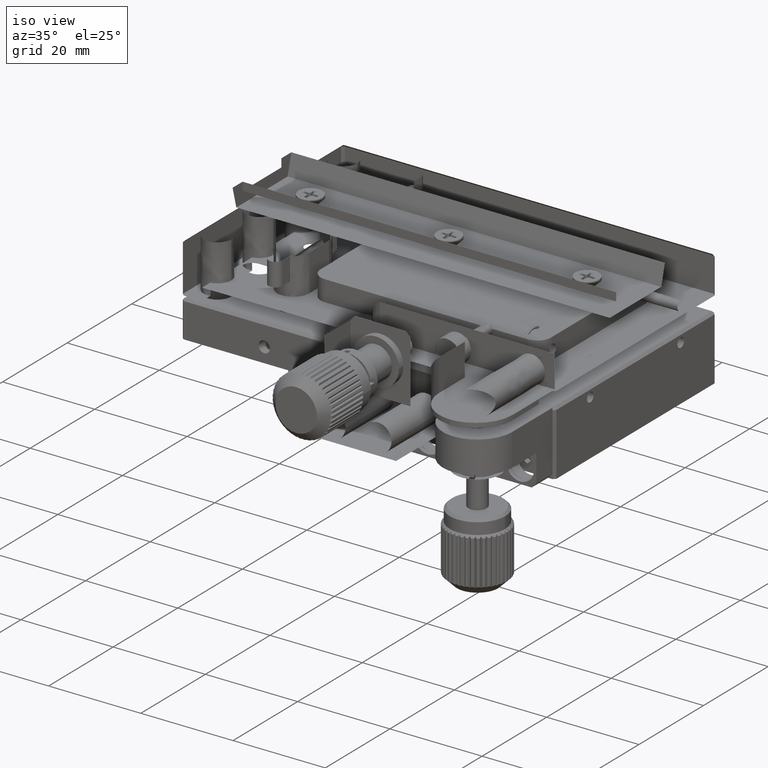
[diagram: clean part render]
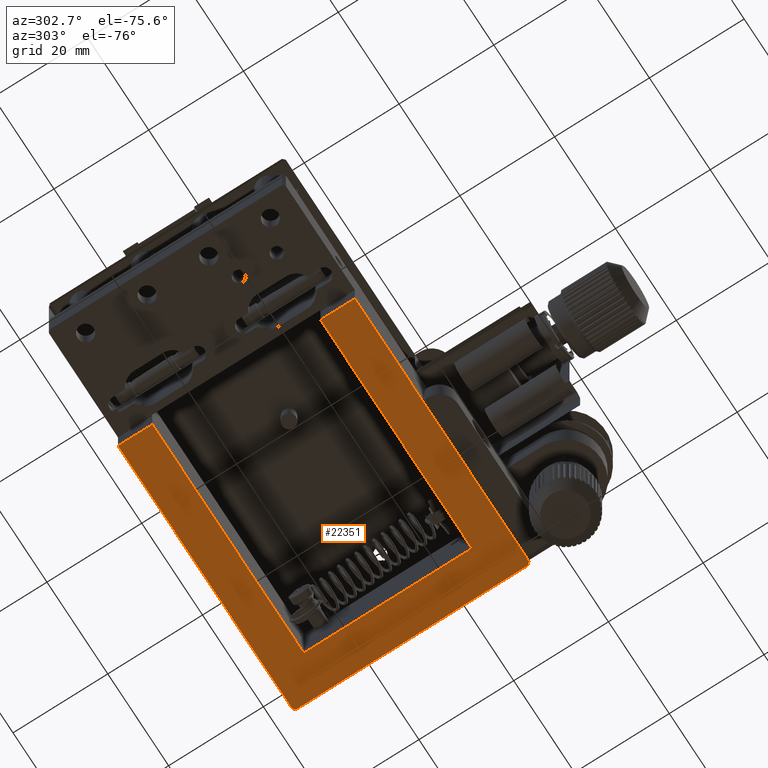
[diagram: tour spotlight — one face highlighted and labeled with its STEP entity id]
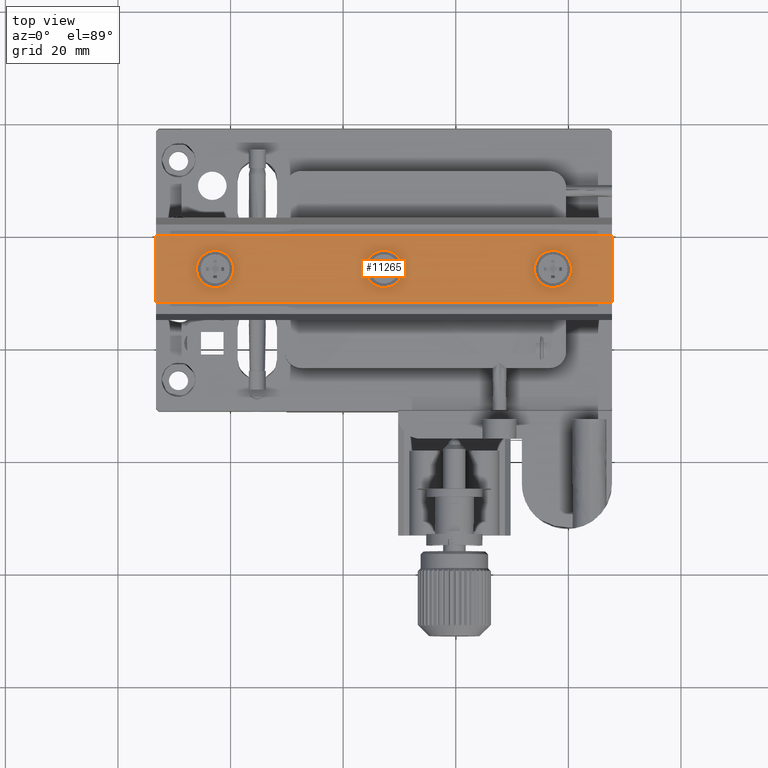
[diagram: tour spotlight — one face highlighted and labeled with its STEP entity id]
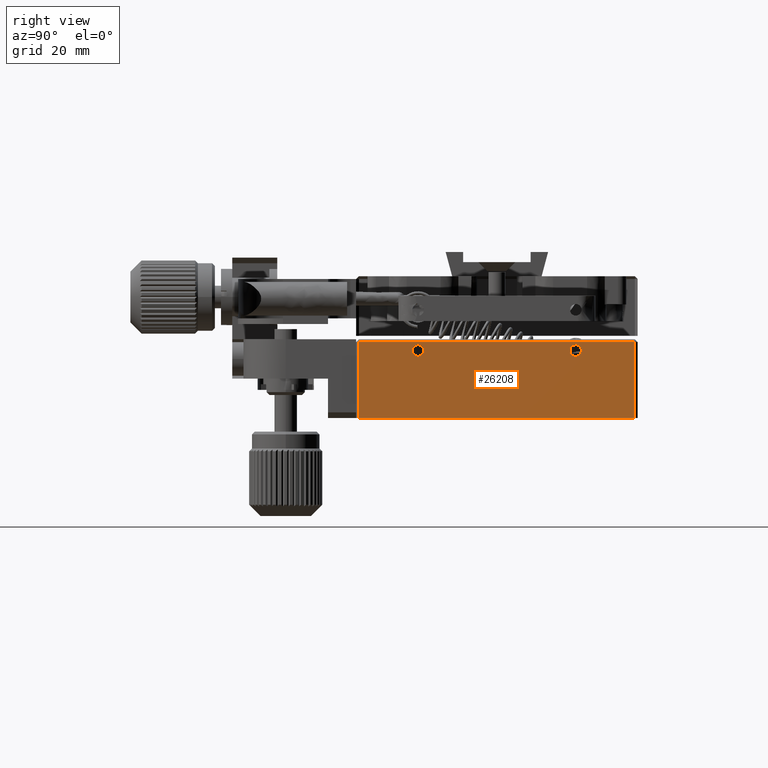
[diagram: tour spotlight — one face highlighted and labeled with its STEP entity id]
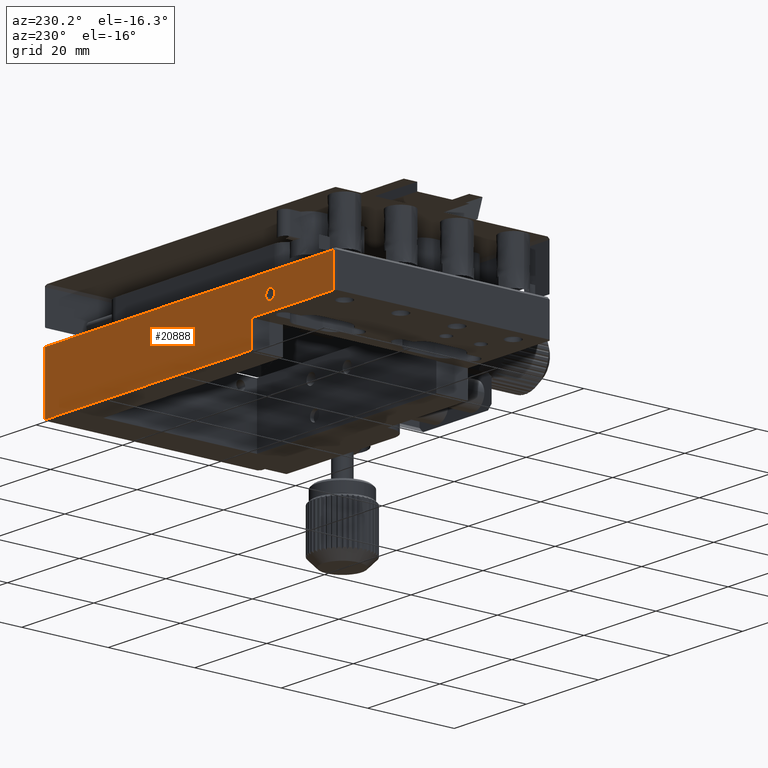
[diagram: tour spotlight — one face highlighted and labeled with its STEP entity id]
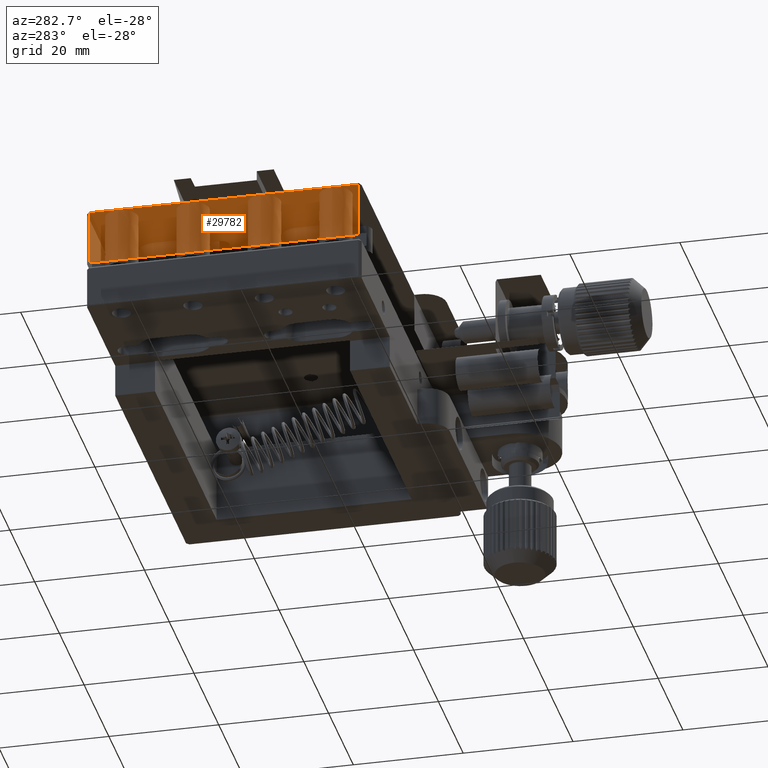
[diagram: tour spotlight — one face highlighted and labeled with its STEP entity id]
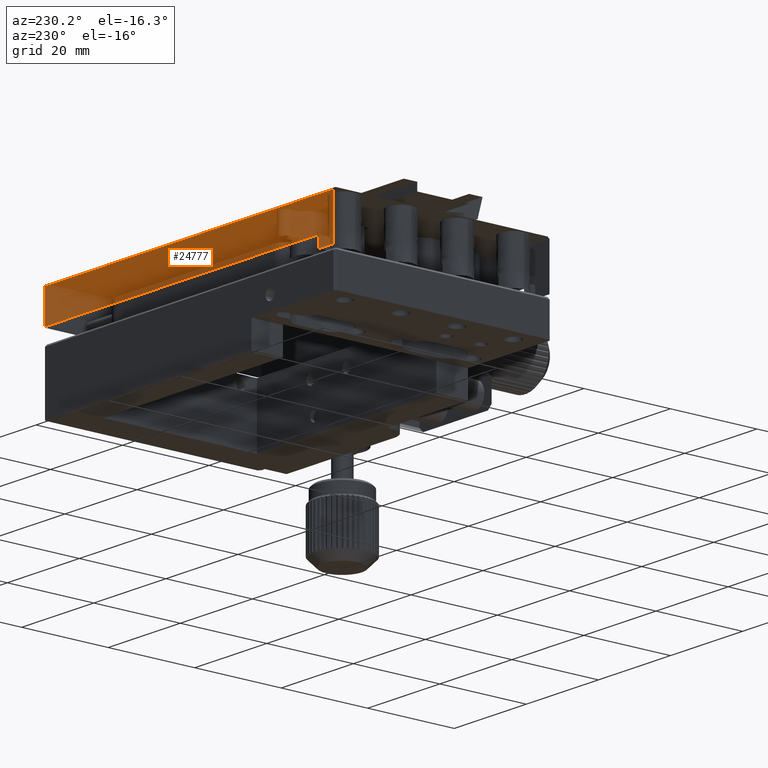
[diagram: tour spotlight — one face highlighted and labeled with its STEP entity id]
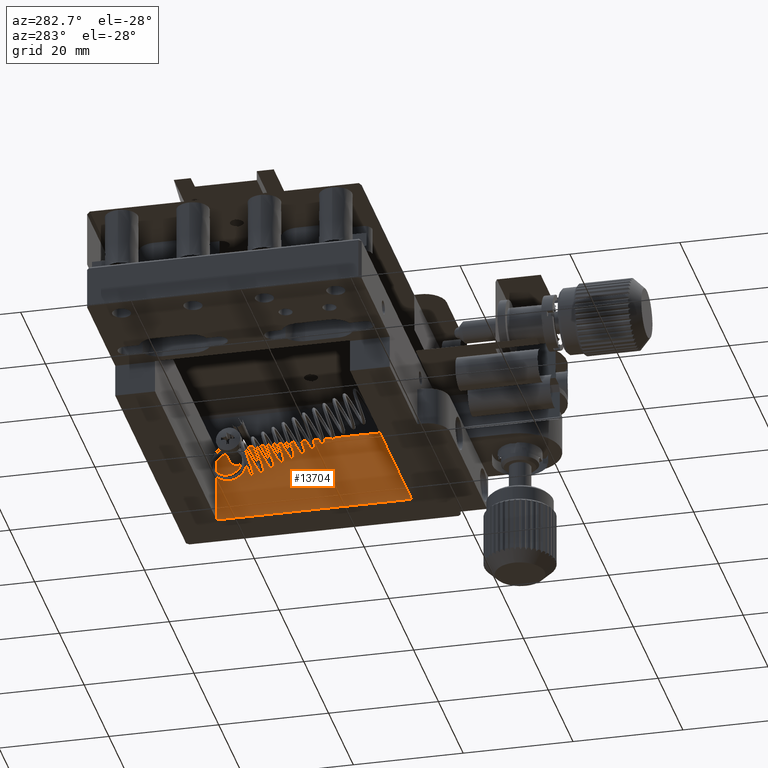
[diagram: tour spotlight — one face highlighted and labeled with its STEP entity id]
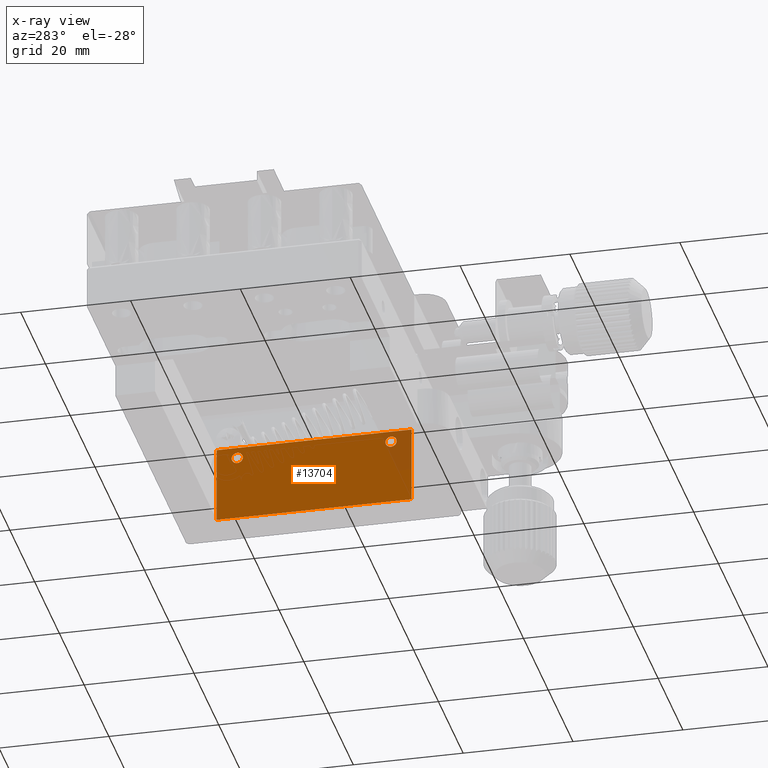
[diagram: x-ray of the same camera — body ghosted, this tour face saturated]
A machine part: a face-by-face anatomy tour. The part has 739 B-rep faces; the first image is the clean iso view, then the 7 largest visible faces are spotlighted one at a time (largest first), each with its STEP entity span.

Face 1 — auxiliary view, entity #22351. In plain terms, the highlighted face is a freeform B-spline surface patch.
Definition (entity closure, byte-faithful):
#93 = VERTEX_POINT ( 'NONE', #20867 ) ;
#1042 = CARTESIAN_POINT ( 'NONE',  ( 47.25667729595620159, 18.55918000742349960, -8.195989931716210819 ) ) ;
#1601 = EDGE_CURVE ( 'NONE', #3650, #3713, #22501, .T. ) ;
#1650 = B_SPLINE_CURVE_WITH_KNOTS ( 'NONE', 1,
 ( #6913, #29962 ),
 .UNSPECIFIED., .F., .F.,
 ( 2, 2 ),
 ( 0.000000000000000000, 0.01745200698080293100 ),
 .UNSPECIFIED. ) ;
#1994 = B_SPLINE_CURVE_WITH_KNOTS ( 'NONE', 1,
 ( #7363, #15677 ),
 .UNSPECIFIED., .F., .F.,
 ( 2, 2 ),
 ( 0.6108202443280980054, 1.000000000000000000 ),
 .UNSPECIFIED. ) ;
#2064 = CARTESIAN_POINT ( 'NONE',  ( -10.04332270404390037, 18.55918000742349960, -8.195989931716210819 ) ) ;
#2088 = VERTEX_POINT ( 'NONE', #8304 ) ;
#2092 = EDGE_CURVE ( 'NONE', #93, #11170, #8403, .T. ) ;
#2333 = ORIENTED_EDGE ( 'NONE', *, *, #8336, .T. ) ;
#2857 = CARTESIAN_POINT ( 'NONE',  ( -10.04332270404390037, 18.55918000742349960, -8.195989931716210819 ) ) ;
#2931 = CARTESIAN_POINT ( 'NONE',  ( -10.04332270404390037, 11.30918000742349960, -8.195989931716210819 ) ) ;
#3468 = EDGE_CURVE ( 'NONE', #3713, #93, #22815, .T. ) ;
#3650 = VERTEX_POINT ( 'NONE', #20637 ) ;
#3713 = VERTEX_POINT ( 'NONE', #12337 ) ;
#4165 = EDGE_CURVE ( 'NONE', #6613, #6692, #1650, .T. ) ;
#4530 = ORIENTED_EDGE ( 'NONE', *, *, #2092, .F. ) ;
#4608 = CARTESIAN_POINT ( 'NONE',  ( -10.04332270404390037, -24.19081999257650040, -8.195989931716210819 ) ) ;
#4882 = FACE_OUTER_BOUND ( 'NONE', #16251, .T. ) ;
#4978 = CARTESIAN_POINT ( 'NONE',  ( 47.75667729595609501, 18.05918000742349960, -8.195989931716210819 ) ) ;
#5523 = VERTEX_POINT ( 'NONE', #4978 ) ;
#5620 = CARTESIAN_POINT ( 'NONE',  ( -10.04332270404390037, -31.44081999257650040, -8.195989931716210819 ) ) ;
#6067 = CARTESIAN_POINT ( 'NONE',  ( -10.04332270404390037, 18.55918000742349960, -8.195989931716210819 ) ) ;
#6459 = B_SPLINE_CURVE_WITH_KNOTS ( 'NONE', 1,
 ( #35245, #26394 ),
 .UNSPECIFIED., .F., .F.,
 ( 2, 2 ),
 ( 0.000000000000000000, 1.000000000000000000 ),
 .UNSPECIFIED. ) ;
#6613 = VERTEX_POINT ( 'NONE', #34014 ) ;
#6692 = VERTEX_POINT ( 'NONE', #22778 ) ;
#6913 = CARTESIAN_POINT ( 'NONE',  ( 47.25667729595609501, -31.44081999257650040, -8.195989931716210819 ) ) ;
#7363 = CARTESIAN_POINT ( 'NONE',  ( 12.25667729595610034, -31.44081999257650040, -8.195989931716210819 ) ) ;
#8304 = CARTESIAN_POINT ( 'NONE',  ( 39.75667729595609501, -24.19081999257650040, -8.195989931716210819 ) ) ;
#8336 = EDGE_CURVE ( 'NONE', #22569, #30436, #1994, .T. ) ;
#8403 = B_SPLINE_CURVE_WITH_KNOTS ( 'NONE', 1,
 ( #2931, #34090 ),
 .UNSPECIFIED., .F., .F.,
 ( 2, 2 ),
 ( 0.000000000000000000, 1.000000000000000000 ),
 .UNSPECIFIED. ) ;
#9719 = CARTESIAN_POINT ( 'NONE',  ( 39.75667729595609501, -24.19081999257650040, -8.195989931716210819 ) ) ;
#10183 = CARTESIAN_POINT ( 'NONE',  ( -10.04332270404390037, -31.44081999257650040, -8.195989931716210819 ) ) ;
#10427 = EDGE_CURVE ( 'NONE', #22569, #6692, #31748, .T. ) ;
#10583 = B_SPLINE_CURVE_WITH_KNOTS ( 'NONE', 1,
 ( #32923, #36248 ),
 .UNSPECIFIED., .F., .F.,
 ( 2, 2 ),
 ( 0.000000000000000000, 1.000000000000000000 ),
 .UNSPECIFIED. ) ;
#10852 = B_SPLINE_CURVE_WITH_KNOTS ( 'NONE', 1,
 ( #31926, #10183 ),
 .UNSPECIFIED., .F., .F.,
 ( 2, 2 ),
 ( 0.000000000000000000, 1.000000000000000000 ),
 .UNSPECIFIED. ) ;
#11170 = VERTEX_POINT ( 'NONE', #12557 ) ;
#12337 = CARTESIAN_POINT ( 'NONE',  ( -10.04332270404390037, 18.55918000742349960, -8.195989931716210819 ) ) ;
#12557 = CARTESIAN_POINT ( 'NONE',  ( 39.75667729595609501, 11.30918000742349960, -8.195989931716210819 ) ) ;
#13004 = CARTESIAN_POINT ( 'NONE',  ( 12.25667729595610034, -31.44081999257650040, -8.195989931716210819 ) ) ;
#13497 = CARTESIAN_POINT ( 'NONE',  ( 12.25667729595610034, -31.44081999257650040, -8.195989931716210819 ) ) ;
#13662 = CARTESIAN_POINT ( 'NONE',  ( -10.04332270404390037, -31.44081999257650040, -8.195989931716210819 ) ) ;
#13932 = ORIENTED_EDGE ( 'NONE', *, *, #34666, .F. ) ;
#14134 = ORIENTED_EDGE ( 'NONE', *, *, #10427, .F. ) ;
#15218 = ORIENTED_EDGE ( 'NONE', *, *, #1601, .F. ) ;
#15275 = B_SPLINE_SURFACE_WITH_KNOTS ( 'NONE', 1, 1, ( 
 ( #32368, #2857 ),
 ( #36237, #5620 ) ),
 .UNSPECIFIED., .F., .F., .F.,
 ( 2, 2 ),
 ( 2, 2 ),
 ( 0.000000000000000000, 1.000000000000000000 ),
 ( 0.000000000000000000, 1.000000000000000000 ),
 .UNSPECIFIED. ) ;
#15677 = CARTESIAN_POINT ( 'NONE',  ( -10.04332270404390037, -31.44081999257650040, -8.195989931716210819 ) ) ;
#15770 = B_SPLINE_CURVE_WITH_KNOTS ( 'NONE', 1,
 ( #9719, #21342 ),
 .UNSPECIFIED., .F., .F.,
 ( 2, 2 ),
 ( 0.000000000000000000, 1.000000000000000000 ),
 .UNSPECIFIED. ) ;
#16242 = B_SPLINE_CURVE_WITH_KNOTS ( 'NONE', 1,
 ( #34412, #1042 ),
 .UNSPECIFIED., .F., .F.,
 ( 2, 2 ),
 ( 0.000000000000000000, 1.000000000000000000 ),
 .UNSPECIFIED. ) ;
#16251 = EDGE_LOOP ( 'NONE', ( #16888, #25829, #22130, #14134, #2333, #13932, #22851, #34195, #4530, #19064, #15218, #21314 ) ) ;
#16612 = CARTESIAN_POINT ( 'NONE',  ( -10.04332270404390037, 11.30918000742349960, -8.195989931716210819 ) ) ;
#16888 = ORIENTED_EDGE ( 'NONE', *, *, #28903, .F. ) ;
#18102 = VERTEX_POINT ( 'NONE', #19795 ) ;
#19064 = ORIENTED_EDGE ( 'NONE', *, *, #3468, .F. ) ;
#19162 = VERTEX_POINT ( 'NONE', #4608 ) ;
#19795 = CARTESIAN_POINT ( 'NONE',  ( 47.75667729595609501, -30.94081999257649684, -8.195989931716210819 ) ) ;
#20637 = CARTESIAN_POINT ( 'NONE',  ( 47.25667729595620159, 18.55918000742349960, -8.195989931716210819 ) ) ;
#20867 = CARTESIAN_POINT ( 'NONE',  ( -10.04332270404390037, 11.30918000742349960, -8.195989931716210819 ) ) ;
#21314 = ORIENTED_EDGE ( 'NONE', *, *, #35968, .F. ) ;
#21342 = CARTESIAN_POINT ( 'NONE',  ( -10.04332270404390037, -24.19081999257650040, -8.195989931716210819 ) ) ;
#22130 = ORIENTED_EDGE ( 'NONE', *, *, #4165, .T. ) ;
#22351 = ADVANCED_FACE ( 'NONE', ( #4882 ), #15275, .T. ) ;
#22501 = B_SPLINE_CURVE_WITH_KNOTS ( 'NONE', 1,
 ( #27335, #2064 ),
 .UNSPECIFIED., .F., .F.,
 ( 2, 2 ),
 ( 0.000000000000000000, 1.000000000000000000 ),
 .UNSPECIFIED. ) ;
#22569 = VERTEX_POINT ( 'NONE', #13497 ) ;
#22778 = CARTESIAN_POINT ( 'NONE',  ( 46.25667729595609501, -31.44081999257650040, -8.195989931716210819 ) ) ;
#22815 = B_SPLINE_CURVE_WITH_KNOTS ( 'NONE', 1,
 ( #6067, #16612 ),
 .UNSPECIFIED., .F., .F.,
 ( 2, 2 ),
 ( 0.000000000000000000, 1.000000000000000000 ),
 .UNSPECIFIED. ) ;
#22851 = ORIENTED_EDGE ( 'NONE', *, *, #33941, .F. ) ;
#23578 = EDGE_CURVE ( 'NONE', #6613, #18102, #34987, .T. ) ;
#23600 = CARTESIAN_POINT ( 'NONE',  ( 47.25667729595609501, -31.44081999257650040, -8.195989931716210819 ) ) ;
#25829 = ORIENTED_EDGE ( 'NONE', *, *, #23578, .F. ) ;
#26394 = CARTESIAN_POINT ( 'NONE',  ( 47.75667729595609501, 18.05918000742349960, -8.195989931716210819 ) ) ;
#27335 = CARTESIAN_POINT ( 'NONE',  ( 47.25667729595620159, 18.55918000742349960, -8.195989931716210819 ) ) ;
#28903 = EDGE_CURVE ( 'NONE', #18102, #5523, #6459, .T. ) ;
#29962 = CARTESIAN_POINT ( 'NONE',  ( 46.25667729595609501, -31.44081999257650040, -8.195989931716210819 ) ) ;
#30436 = VERTEX_POINT ( 'NONE', #13662 ) ;
#31748 = B_SPLINE_CURVE_WITH_KNOTS ( 'NONE', 1,
 ( #13004, #32161 ),
 .UNSPECIFIED., .F., .F.,
 ( 2, 2 ),
 ( -0.9825479930191969302, -0.3891797556719019946 ),
 .UNSPECIFIED. ) ;
#31926 = CARTESIAN_POINT ( 'NONE',  ( -10.04332270404390037, -24.19081999257650040, -8.195989931716210819 ) ) ;
#32161 = CARTESIAN_POINT ( 'NONE',  ( 46.25667729595609501, -31.44081999257650040, -8.195989931716210819 ) ) ;
#32368 = CARTESIAN_POINT ( 'NONE',  ( 47.75667729595609501, 18.55918000742349960, -8.195989931716210819 ) ) ;
#32915 = EDGE_CURVE ( 'NONE', #11170, #2088, #10583, .T. ) ;
#32923 = CARTESIAN_POINT ( 'NONE',  ( 39.75667729595609501, 11.30918000742349960, -8.195989931716210819 ) ) ;
#33941 = EDGE_CURVE ( 'NONE', #2088, #19162, #15770, .T. ) ;
#34014 = CARTESIAN_POINT ( 'NONE',  ( 47.25667729595609501, -31.44081999257650040, -8.195989931716210819 ) ) ;
#34090 = CARTESIAN_POINT ( 'NONE',  ( 39.75667729595609501, 11.30918000742349960, -8.195989931716210819 ) ) ;
#34195 = ORIENTED_EDGE ( 'NONE', *, *, #32915, .F. ) ;
#34412 = CARTESIAN_POINT ( 'NONE',  ( 47.75667729595609501, 18.05918000742349960, -8.195989931716210819 ) ) ;
#34666 = EDGE_CURVE ( 'NONE', #19162, #30436, #10852, .T. ) ;
#34987 = B_SPLINE_CURVE_WITH_KNOTS ( 'NONE', 1,
 ( #23600, #35394 ),
 .UNSPECIFIED., .F., .F.,
 ( 2, 2 ),
 ( 0.000000000000000000, 1.000000000000000000 ),
 .UNSPECIFIED. ) ;
#35245 = CARTESIAN_POINT ( 'NONE',  ( 47.75667729595609501, -30.94081999257649684, -8.195989931716210819 ) ) ;
#35394 = CARTESIAN_POINT ( 'NONE',  ( 47.75667729595609501, -30.94081999257649684, -8.195989931716210819 ) ) ;
#35968 = EDGE_CURVE ( 'NONE', #5523, #3650, #16242, .T. ) ;
#36237 = CARTESIAN_POINT ( 'NONE',  ( 47.75667729595609501, -31.44081999257650040, -8.195989931716210819 ) ) ;
#36248 = CARTESIAN_POINT ( 'NONE',  ( 39.75667729595609501, -24.19081999257650040, -8.195989931716210819 ) ) ;

Face 2 — top view, entity #11265. In plain terms, the highlighted face is a freeform B-spline surface patch.
Definition (entity closure, byte-faithful):
#237 = CARTESIAN_POINT ( 'NONE',  ( 40.13801472475114451, -8.102082515160493159, 19.50396032735410046 ) ) ;
#276 = EDGE_CURVE ( 'NONE', #13851, #16304, #9013, .T. ) ;
#423 = CARTESIAN_POINT ( 'NONE',  ( 39.28071353165547919, -9.077807314903640901, 19.50396032735410046 ) ) ;
#575 = CARTESIAN_POINT ( 'NONE',  ( 9.280713531716829223, -9.077807314829129837, 19.50396032735410401 ) ) ;
#600 = EDGE_CURVE ( 'NONE', #17977, #942, #32079, .T. ) ;
#683 = CARTESIAN_POINT ( 'NONE',  ( -21.07620436756257476, -3.553604111212718131, 19.50396032735410401 ) ) ;
#719 = CARTESIAN_POINT ( 'NONE',  ( -33.24332270404389789, -12.43494817087820081, 19.50396032735410046 ) ) ;
#861 = CARTESIAN_POINT ( 'NONE',  ( -21.88473038697225803, -3.218687316105844687, 19.50396032735410756 ) ) ;
#931 = CARTESIAN_POINT ( 'NONE',  ( 9.899545816040872026, -8.458993782772630254, 19.50396032735409335 ) ) ;
#942 = VERTEX_POINT ( 'NONE', #24615 ) ;
#1004 = CARTESIAN_POINT ( 'NONE',  ( -25.62467901415088889, -8.102071581708331749, 19.50396032735410401 ) ) ;
#1778 = CARTESIAN_POINT ( 'NONE',  ( 34.37533986716096024, -4.767813826598882976, 19.50396032735410756 ) ) ;
#1896 = CARTESIAN_POINT ( 'NONE',  ( 3.956677295946070316, -6.434948170878150187, 19.50396032736464846 ) ) ;
#2026 = CARTESIAN_POINT ( 'NONE',  ( 47.75667729595609501, -12.43494817087820081, 19.50396032735410046 ) ) ;
#2216 = CARTESIAN_POINT ( 'NONE',  ( 47.75667729595609501, -0.4349481708781530176, 19.50396032735410046 ) ) ;
#2394 = FACE_BOUND ( 'NONE', #3937, .T. ) ;
#2454 = B_SPLINE_CURVE_WITH_KNOTS ( 'NONE', 3,
 ( #3510, #20844, #3681, #23243, #34481, #34840, #14792, #23417, #17900, #9225, #17726, #34663, #575, #931, #6623, #9410, #26362, #32067 ),
 .UNSPECIFIED., .F., .F.,
 ( 4, 2, 2, 2, 2, 2, 2, 2, 4 ),
 ( 0.000000000000000000, 0.1249999999999999722, 0.2499999999999999445, 0.3749999999999998890, 0.4999999999999998890, 0.6249999999999998890, 0.7499999999999997780, 0.8749999999999997780, 1.000000000000000000 ),
 .UNSPECIFIED. ) ;
#2696 = EDGE_CURVE ( 'NONE', #25484, #25932, #3489, .T. ) ;
#3310 = CARTESIAN_POINT ( 'NONE',  ( 47.75667729595609501, -12.43494817087820081, 19.50396032735410046 ) ) ;
#3441 = CARTESIAN_POINT ( 'NONE',  ( -20.10046356012767177, -4.410911935181971444, 19.50396032735409690 ) ) ;
#3489 = B_SPLINE_CURVE_WITH_KNOTS ( 'NONE', 1,
 ( #5654, #21909 ),
 .UNSPECIFIED., .F., .F.,
 ( 2, 2 ),
 ( 0.000000000000000000, 1.000000000000000000 ),
 .UNSPECIFIED. ) ;
#3510 = CARTESIAN_POINT ( 'NONE',  ( 3.956677295946070316, -6.434948170878150187, 19.50396032736464846 ) ) ;
#3681 = CARTESIAN_POINT ( 'NONE',  ( 4.040428691591085197, -7.293535413636827336, 19.50396032735410401 ) ) ;
#3744 = EDGE_LOOP ( 'NONE', ( #10136, #14054 ) ) ;
#3937 = EDGE_LOOP ( 'NONE', ( #13579, #13803 ) ) ;
#4157 = ORIENTED_EDGE ( 'NONE', *, *, #8285, .T. ) ;
#5029 = CARTESIAN_POINT ( 'NONE',  ( -19.86198527529655422, -8.102082515221889381, 19.50396032735409690 ) ) ;
#5213 = CARTESIAN_POINT ( 'NONE',  ( -19.44332270411804586, -6.872572704495168772, 19.50396032735410046 ) ) ;
#5401 = CARTESIAN_POINT ( 'NONE',  ( 34.04042869160588936, -7.293535413648649879, 19.50396032735410046 ) ) ;
#5654 = CARTESIAN_POINT ( 'NONE',  ( -33.24332270404389789, -12.43494817087820081, 19.50396032735410046 ) ) ;
#5945 = CARTESIAN_POINT ( 'NONE',  ( 40.47294478169950338, -7.293524480190471060, 19.50396032735410046 ) ) ;
#6130 = CARTESIAN_POINT ( 'NONE',  ( 33.95667729597560935, -6.872538052380443574, 19.50396032735410401 ) ) ;
#6623 = CARTESIAN_POINT ( 'NONE',  ( 10.13801472477697097, -8.102082515169389154, 19.50396032735410401 ) ) ;
#6697 = CARTESIAN_POINT ( 'NONE',  ( -22.30574882925192526, -9.734954800713387257, 19.50396032735410401 ) ) ;
#6829 = EDGE_CURVE ( 'NONE', #14081, #28853, #33549, .T. ) ;
#6977 = EDGE_CURVE ( 'NONE', #19061, #13031, #7813, .T. ) ;
#7275 = CARTESIAN_POINT ( 'NONE',  ( 10.55667729596619964, -6.434948170878150187, 19.50396032736464846 ) ) ;
#7436 = CARTESIAN_POINT ( 'NONE',  ( -20.10045418394548378, -8.458993782620241930, 19.50396032735410401 ) ) ;
#7558 = FACE_OUTER_BOUND ( 'NONE', #31440, .T. ) ;
#7813 = B_SPLINE_CURVE_WITH_KNOTS ( 'NONE', 3,
 ( #8907, #6130, #5401, #25326, #19811, #24968, #11142, #33434, #33606, #19623, #30661, #25507, #423, #14092, #237, #5945, #20167, #22370 ),
 .UNSPECIFIED., .F., .F.,
 ( 4, 2, 2, 2, 2, 2, 2, 2, 4 ),
 ( 0.000000000000000000, 0.1250000000000000000, 0.2500000000000000000, 0.3750000000000000000, 0.5000000000000000000, 0.6250000000000000000, 0.7500000000000000000, 0.8750000000000000000, 1.000000000000000000 ),
 .UNSPECIFIED. ) ;
#8047 = CARTESIAN_POINT ( 'NONE',  ( 37.69425117072655240, -3.134954800805425990, 19.50396032735409690 ) ) ;
#8285 = EDGE_CURVE ( 'NONE', #25932, #13851, #28002, .T. ) ;
#8287 = EDGE_CURVE ( 'NONE', #17977, #942, #2454, .T. ) ;
#8473 = CARTESIAN_POINT ( 'NONE',  ( 40.55667729593665172, -6.434948170878150187, 19.50396032736464846 ) ) ;
#8907 = CARTESIAN_POINT ( 'NONE',  ( 33.95667729597560225, -6.434948170878150187, 19.50396032736464846 ) ) ;
#9013 = B_SPLINE_CURVE_WITH_KNOTS ( 'NONE', 1,
 ( #9206, #3310 ),
 .UNSPECIFIED., .F., .F.,
 ( 2, 2 ),
 ( 0.000000000000000000, 1.000000000000000000 ),
 .UNSPECIFIED. ) ;
#9126 = CARTESIAN_POINT ( 'NONE',  ( -21.07619929324238228, -9.316304481016707939, 19.50396032735410401 ) ) ;
#9206 = CARTESIAN_POINT ( 'NONE',  ( 47.75667729595609501, -0.4349481708781535172, 19.50396032735410046 ) ) ;
#9225 = CARTESIAN_POINT ( 'NONE',  ( 7.694251170773342530, -9.734954800791726370, 19.50396032735409690 ) ) ;
#9410 = CARTESIAN_POINT ( 'NONE',  ( 10.47294478172832832, -7.293524480204204075, 19.50396032735410401 ) ) ;
#9486 = CARTESIAN_POINT ( 'NONE',  ( -23.18089657883595933, -9.734941540894718415, 19.50396032735410046 ) ) ;
#9521 = CARTESIAN_POINT ( 'NONE',  ( -25.95959018973423227, -5.576371861579800360, 19.50396032735410046 ) ) ;
#9807 = CARTESIAN_POINT ( 'NONE',  ( -19.44332270411790020, -6.434948170878160845, 19.50396032732674811 ) ) ;
#10136 = ORIENTED_EDGE ( 'NONE', *, *, #22224, .T. ) ;
#10341 = CARTESIAN_POINT ( 'NONE',  ( 33.95667729597560225, -6.434948170878150187, 19.50396032736464846 ) ) ;
#10642 = CARTESIAN_POINT ( 'NONE',  ( 39.89953644001268884, -4.410911935215557023, 19.50396032735410401 ) ) ;
#11005 = CARTESIAN_POINT ( 'NONE',  ( 35.23264106025239784, -3.792089026859760015, 19.50396032735409690 ) ) ;
#11142 = CARTESIAN_POINT ( 'NONE',  ( 35.58955895942547443, -9.316292230592631896, 19.50396032735410046 ) ) ;
#11265 = ADVANCED_FACE ( 'NONE', ( #27668, #2394, #22305, #7558 ), #34328, .T. ) ;
#11335 = EDGE_CURVE ( 'NONE', #16304, #25484, #32069, .T. ) ;
#11470 = CARTESIAN_POINT ( 'NONE',  ( -33.24332270404389789, -0.4349481708781535172, 19.50396032735410046 ) ) ;
#11941 = CARTESIAN_POINT ( 'NONE',  ( -25.38619122407933659, -4.410902559072961360, 19.50396032735410401 ) ) ;
#12195 = EDGE_CURVE ( 'NONE', #13031, #19061, #14512, .T. ) ;
#12225 = CARTESIAN_POINT ( 'NONE',  ( 33.95667729597548856, -5.997323637161804832, 19.50396032735410046 ) ) ;
#12263 = CARTESIAN_POINT ( 'NONE',  ( -24.41044104052160435, -9.316292230544965136, 19.50396032735410046 ) ) ;
#12644 = CARTESIAN_POINT ( 'NONE',  ( 3.956677295946063655, 0.1650518291419912353, 19.50396032736988161 ) ) ;
#12662 = CARTESIAN_POINT ( 'NONE',  ( -19.44332270411790020, -6.434948170878160845, 19.50396032732674811 ) ) ;
#12981 = EDGE_LOOP ( 'NONE', ( #17684, #34413 ) ) ;
#13031 = VERTEX_POINT ( 'NONE', #8473 ) ;
#13103 = CARTESIAN_POINT ( 'NONE',  ( -33.24332270404389789, -0.4349481708781530176, 19.50396032735410046 ) ) ;
#13135 = CARTESIAN_POINT ( 'NONE',  ( -26.04332270396984939, -6.434948170878160845, 19.50396032732674811 ) ) ;
#13579 = ORIENTED_EDGE ( 'NONE', *, *, #12195, .T. ) ;
#13776 = CARTESIAN_POINT ( 'NONE',  ( 35.58955388509440354, -3.553591860691916793, 19.50396032735410401 ) ) ;
#13803 = ORIENTED_EDGE ( 'NONE', *, *, #6977, .T. ) ;
#13851 = VERTEX_POINT ( 'NONE', #23635 ) ;
#14054 = ORIENTED_EDGE ( 'NONE', *, *, #6829, .T. ) ;
#14081 = VERTEX_POINT ( 'NONE', #13135 ) ;
#14092 = CARTESIAN_POINT ( 'NONE',  ( 39.89954581606037465, -8.458993782656280658, 19.50396032735410046 ) ) ;
#14401 = CARTESIAN_POINT ( 'NONE',  ( 47.75667729595609501, -12.43494817087820081, 19.50396032735410046 ) ) ;
#14512 = B_SPLINE_CURVE_WITH_KNOTS ( 'NONE', 3,
 ( #36247, #18765, #27229, #30167, #10642, #19127, #36068, #15804, #8047, #16539, #27778, #13776, #11005, #18577, #1778, #19671, #12225, #22597 ),
 .UNSPECIFIED., .F., .F.,
 ( 4, 2, 2, 2, 2, 2, 2, 2, 4 ),
 ( 0.000000000000000000, 0.1250000000000000278, 0.2500000000000000555, 0.3750000000000001110, 0.5000000000000001110, 0.6250000000000001110, 0.7500000000000002220, 0.8750000000000001110, 1.000000000000000000 ),
 .UNSPECIFIED. ) ;
#14725 = CARTESIAN_POINT ( 'NONE',  ( -22.30574882924845781, -3.134954800860033419, 19.50396032735410401 ) ) ;
#14792 = CARTESIAN_POINT ( 'NONE',  ( 5.589558959421821349, -9.316292230612624792, 19.50396032735409335 ) ) ;
#14825 = ORIENTED_EDGE ( 'NONE', *, *, #2696, .T. ) ;
#15054 = CARTESIAN_POINT ( 'NONE',  ( -26.04332270396976767, -6.872538052420714472, 19.50396032735410401 ) ) ;
#15753 = CARTESIAN_POINT ( 'NONE',  ( -20.71928646841598010, -9.077807314862495147, 19.50396032735409690 ) ) ;
#15804 = CARTESIAN_POINT ( 'NONE',  ( 38.11526961297658289, -3.218687316052617930, 19.50396032735409335 ) ) ;
#15942 = CARTESIAN_POINT ( 'NONE',  ( -19.44332270411790020, -6.434948170878160845, 19.50396032732674811 ) ) ;
#16304 = VERTEX_POINT ( 'NONE', #32345 ) ;
#16447 = B_SPLINE_CURVE_WITH_KNOTS ( 'NONE', 3,
 ( #12662, #29238, #29418, #34770, #3441, #25941, #683, #861, #14725, #26651, #23891, #31468, #35134, #11941, #34409, #9521, #31638, #20777 ),
 .UNSPECIFIED., .F., .F.,
 ( 4, 2, 2, 2, 2, 2, 2, 2, 4 ),
 ( 0.000000000000000000, 0.1249999999999998057, 0.2499999999999996114, 0.3749999999999996114, 0.4999999999999996669, 0.6249999999999996669, 0.7499999999999996669, 0.8749999999999998890, 1.000000000000000000 ),
 .UNSPECIFIED. ) ;
#16539 = CARTESIAN_POINT ( 'NONE',  ( 36.81910342118565183, -3.134941540989673481, 19.50396032735410046 ) ) ;
#17684 = ORIENTED_EDGE ( 'NONE', *, *, #600, .F. ) ;
#17726 = CARTESIAN_POINT ( 'NONE',  ( 8.115264538762955837, -9.651196775245297843, 19.50396032735410401 ) ) ;
#17900 = CARTESIAN_POINT ( 'NONE',  ( 6.819103421138856369, -9.734941540984715758, 19.50396032735410046 ) ) ;
#17977 = VERTEX_POINT ( 'NONE', #1896 ) ;
#17979 = CARTESIAN_POINT ( 'NONE',  ( -21.88473546129259972, -9.651196775177174558, 19.50396032735410401 ) ) ;
#18001 = CARTESIAN_POINT ( 'NONE',  ( 3.956677295946070316, -6.434948170878150187, 19.50396032736464846 ) ) ;
#18577 = CARTESIAN_POINT ( 'NONE',  ( 34.61380877585605020, -4.410902559092757080, 19.50396032735410756 ) ) ;
#18765 = CARTESIAN_POINT ( 'NONE',  ( 40.55667729593669435, -5.997358289319394409, 19.50396032735410401 ) ) ;
#19061 = VERTEX_POINT ( 'NONE', #10341 ) ;
#19127 = CARTESIAN_POINT ( 'NONE',  ( 39.28072290770330000, -3.792079650736961405, 19.50396032735410756 ) ) ;
#19623 = CARTESIAN_POINT ( 'NONE',  ( 37.69425117074549547, -9.734954800767985361, 19.50396032735410046 ) ) ;
#19671 = CARTESIAN_POINT ( 'NONE',  ( 34.04040981021259427, -5.576371861562668286, 19.50396032735410756 ) ) ;
#19811 = CARTESIAN_POINT ( 'NONE',  ( 34.61381815198323864, -8.458984406591936178, 19.50396032735409690 ) ) ;
#20167 = CARTESIAN_POINT ( 'NONE',  ( 40.55667729593659487, -6.872572704591370929, 19.50396032735410046 ) ) ;
#20777 = CARTESIAN_POINT ( 'NONE',  ( -26.04332270396984939, -6.434948170878160845, 19.50396032732674811 ) ) ;
#20844 = CARTESIAN_POINT ( 'NONE',  ( 3.956677295946028572, -6.872538052331017333, 19.50396032735410756 ) ) ;
#21221 = CARTESIAN_POINT ( 'NONE',  ( -33.24332270404389789, -12.43494817087820081, 19.50396032735410046 ) ) ;
#21909 = CARTESIAN_POINT ( 'NONE',  ( -33.24332270404389789, -0.4349481708781535172, 19.50396032735410046 ) ) ;
#22129 = CARTESIAN_POINT ( 'NONE',  ( -33.24332270404389789, -12.43494817087820081, 19.50396032735410046 ) ) ;
#22224 = EDGE_CURVE ( 'NONE', #28853, #14081, #16447, .T. ) ;
#22305 = FACE_BOUND ( 'NONE', #3744, .T. ) ;
#22370 = CARTESIAN_POINT ( 'NONE',  ( 40.55667729593665172, -6.434948170878150187, 19.50396032736464846 ) ) ;
#22597 = CARTESIAN_POINT ( 'NONE',  ( 33.95667729597560225, -6.434948170878150187, 19.50396032736464846 ) ) ;
#23243 = CARTESIAN_POINT ( 'NONE',  ( 4.375320985728013312, -8.102071581736767669, 19.50396032735410401 ) ) ;
#23417 = CARTESIAN_POINT ( 'NONE',  ( 6.398084978873169071, -9.651209025736774194, 19.50396032735410046 ) ) ;
#23494 = CARTESIAN_POINT ( 'NONE',  ( -23.60191502111905137, -9.651209025648915585, 19.50396032735409335 ) ) ;
#23635 = CARTESIAN_POINT ( 'NONE',  ( 47.75667729595609501, -0.4349481708781535172, 19.50396032735410046 ) ) ;
#23891 = CARTESIAN_POINT ( 'NONE',  ( -23.60190994679529553, -3.218699566579044546, 19.50396032735410046 ) ) ;
#24166 = ORIENTED_EDGE ( 'NONE', *, *, #11335, .T. ) ;
#24615 = CARTESIAN_POINT ( 'NONE',  ( 10.55667729596619964, -6.434948170878150187, 19.50396032736464846 ) ) ;
#24968 = CARTESIAN_POINT ( 'NONE',  ( 35.23263168412528046, -9.077816690967990709, 19.50396032735410046 ) ) ;
#25326 = CARTESIAN_POINT ( 'NONE',  ( 34.37532098576780726, -8.102071581702313452, 19.50396032735409690 ) ) ;
#25484 = VERTEX_POINT ( 'NONE', #21221 ) ;
#25507 = CARTESIAN_POINT ( 'NONE',  ( 38.92380070683858406, -9.316304481046344677, 19.50396032735410046 ) ) ;
#25932 = VERTEX_POINT ( 'NONE', #28917 ) ;
#25941 = CARTESIAN_POINT ( 'NONE',  ( -20.71927709223364289, -3.792079650847778538, 19.50396032735409335 ) ) ;
#26007 = CARTESIAN_POINT ( 'NONE',  ( 47.75667729595609501, -0.4349481708781535172, 19.50396032735410046 ) ) ;
#26362 = CARTESIAN_POINT ( 'NONE',  ( 10.55667729596617122, -6.872572704601331850, 19.50396032735410046 ) ) ;
#26651 = CARTESIAN_POINT ( 'NONE',  ( -23.18089657883942323, -3.134941541044279134, 19.50396032735410401 ) ) ;
#27202 = CARTESIAN_POINT ( 'NONE',  ( 10.55667729596619075, 0.1650518291419912353, 19.50396032736988161 ) ) ;
#27229 = CARTESIAN_POINT ( 'NONE',  ( 40.47292590036925475, -5.576360928202913847, 19.50396032735410401 ) ) ;
#27668 = FACE_BOUND ( 'NONE', #12981, .T. ) ;
#27733 = CARTESIAN_POINT ( 'NONE',  ( -19.52705521835374824, -7.293524480087310025, 19.50396032735410046 ) ) ;
#27778 = CARTESIAN_POINT ( 'NONE',  ( 36.39809005322304358, -3.218699566525737410, 19.50396032735410046 ) ) ;
#28002 = B_SPLINE_CURVE_WITH_KNOTS ( 'NONE', 1,
 ( #11470, #26007 ),
 .UNSPECIFIED., .F., .F.,
 ( 2, 2 ),
 ( 0.000000000000000000, 1.000000000000000000 ),
 .UNSPECIFIED. ) ;
#28853 = VERTEX_POINT ( 'NONE', #9807 ) ;
#28917 = CARTESIAN_POINT ( 'NONE',  ( -33.24332270404389789, -0.4349481708781535172, 19.50396032735410046 ) ) ;
#29033 = CARTESIAN_POINT ( 'NONE',  ( -26.04332270396984939, -6.434948170878160845, 19.50396032732674811 ) ) ;
#29238 = CARTESIAN_POINT ( 'NONE',  ( -19.44332270411788599, -5.997358289338531101, 19.50396032735410756 ) ) ;
#29379 = CARTESIAN_POINT ( 'NONE',  ( -25.95957130837443572, -7.293535413600871209, 19.50396032735410046 ) ) ;
#29418 = CARTESIAN_POINT ( 'NONE',  ( -19.52707409971315755, -5.576360928158344166, 19.50396032735410401 ) ) ;
#30167 = CARTESIAN_POINT ( 'NONE',  ( 40.13803360608158499, -4.767824759958638303, 19.50396032735410401 ) ) ;
#30661 = CARTESIAN_POINT ( 'NONE',  ( 38.11526453866824227, -9.651196775248410020, 19.50396032735410046 ) ) ;
#31440 = EDGE_LOOP ( 'NONE', ( #24166, #14825, #4157, #32321 ) ) ;
#31468 = CARTESIAN_POINT ( 'NONE',  ( -24.41044611484550941, -3.553591860739517383, 19.50396032735410401 ) ) ;
#31638 = CARTESIAN_POINT ( 'NONE',  ( -26.04332270396993465, -5.997323637171966482, 19.50396032735410046 ) ) ;
#31961 = CARTESIAN_POINT ( 'NONE',  ( -24.76736831585913023, -9.077816690906393760, 19.50396032735410756 ) ) ;
#32067 = CARTESIAN_POINT ( 'NONE',  ( 10.55667729596619964, -6.434948170878150187, 19.50396032736464846 ) ) ;
#32069 = B_SPLINE_CURVE_WITH_KNOTS ( 'NONE', 1,
 ( #14401, #719 ),
 .UNSPECIFIED., .F., .F.,
 ( 2, 2 ),
 ( 0.000000000000000000, 1.000000000000000000 ),
 .UNSPECIFIED. ) ;
#32079 =( BOUNDED_CURVE ( )  B_SPLINE_CURVE ( 3, ( #18001, #12644, #27202, #7275 ),
 .UNSPECIFIED., .F., .F. ) 
 B_SPLINE_CURVE_WITH_KNOTS ( ( 4, 4 ),
 ( 0.000000000000000000, 1.000000000000000000 ),
 .UNSPECIFIED. ) 
 CURVE ( )  GEOMETRIC_REPRESENTATION_ITEM ( )  RATIONAL_B_SPLINE_CURVE ( ( 1.000000000000000000, 0.3333333333333329818, 0.3333333333333329818, 1.000000000000000000 ) ) 
 REPRESENTATION_ITEM ( '' )  );
#32321 = ORIENTED_EDGE ( 'NONE', *, *, #276, .T. ) ;
#32345 = CARTESIAN_POINT ( 'NONE',  ( 47.75667729595609501, -12.43494817087820081, 19.50396032735410046 ) ) ;
#33434 = CARTESIAN_POINT ( 'NONE',  ( 36.39808497889204375, -9.651209025702122801, 19.50396032735410046 ) ) ;
#33549 = B_SPLINE_CURVE_WITH_KNOTS ( 'NONE', 3,
 ( #29033, #15054, #29379, #1004, #34737, #31961, #12263, #23494, #9486, #6697, #17979, #9126, #15753, #7436, #5029, #27733, #5213, #15942 ),
 .UNSPECIFIED., .F., .F.,
 ( 4, 2, 2, 2, 2, 2, 2, 2, 4 ),
 ( 0.000000000000000000, 0.1250000000000000278, 0.2500000000000000555, 0.3750000000000001110, 0.5000000000000001110, 0.6250000000000001110, 0.7500000000000002220, 0.8750000000000002220, 1.000000000000000000 ),
 .UNSPECIFIED. ) ;
#33606 = CARTESIAN_POINT ( 'NONE',  ( 36.81910342116672297, -9.734941540949327177, 19.50396032735410046 ) ) ;
#34328 = B_SPLINE_SURFACE_WITH_KNOTS ( 'NONE', 1, 1, ( 
 ( #2216, #13103 ),
 ( #2026, #22129 ) ),
 .UNSPECIFIED., .F., .F., .F.,
 ( 2, 2 ),
 ( 2, 2 ),
 ( 0.000000000000000000, 1.000000000000000000 ),
 ( 0.000000000000000000, 1.000000000000000000 ),
 .UNSPECIFIED. ) ;
#34409 = CARTESIAN_POINT ( 'NONE',  ( -25.62466013279142274, -4.767813826623557460, 19.50396032735410046 ) ) ;
#34413 = ORIENTED_EDGE ( 'NONE', *, *, #8287, .T. ) ;
#34481 = CARTESIAN_POINT ( 'NONE',  ( 4.613818151920298760, -8.458984406604253437, 19.50396032735410046 ) ) ;
#34663 = CARTESIAN_POINT ( 'NONE',  ( 8.923800706766627400, -9.316304481104111801, 19.50396032735410756 ) ) ;
#34737 = CARTESIAN_POINT ( 'NONE',  ( -25.38618184795504717, -8.458984406576346871, 19.50396032735410046 ) ) ;
#34770 = CARTESIAN_POINT ( 'NONE',  ( -19.86196639393682517, -4.767824760045013655, 19.50396032735410401 ) ) ;
#34840 = CARTESIAN_POINT ( 'NONE',  ( 5.232631684146562989, -9.077816690997501325, 19.50396032735410046 ) ) ;
#35134 = CARTESIAN_POINT ( 'NONE',  ( -24.76735893973499714, -3.792089026956789510, 19.50396032735410046 ) ) ;
#36068 = CARTESIAN_POINT ( 'NONE',  ( 38.92379563253035002, -3.553604111165035828, 19.50396032735409690 ) ) ;
#36247 = CARTESIAN_POINT ( 'NONE',  ( 40.55667729593665172, -6.434948170878150187, 19.50396032736464846 ) ) ;

Face 3 — right view, entity #26208. In plain terms, the highlighted face is a freeform B-spline surface patch.
Definition (entity closure, byte-faithful):
#299 = CARTESIAN_POINT ( 'NONE',  ( 47.75667729595609501, 18.05918000742349960, 5.304010068283770529 ) ) ;
#456 =( BOUNDED_CURVE ( )  B_SPLINE_CURVE ( 3, ( #20228, #33669, #17457, #22976 ),
 .UNSPECIFIED., .F., .F. ) 
 B_SPLINE_CURVE_WITH_KNOTS ( ( 4, 4 ),
 ( 0.000000000000000000, 1.000000000000000000 ),
 .UNSPECIFIED. ) 
 CURVE ( )  GEOMETRIC_REPRESENTATION_ITEM ( )  RATIONAL_B_SPLINE_CURVE ( ( 1.000000000000000000, 0.3333333333333329818, 0.3333333333333329818, 1.000000000000000000 ) ) 
 REPRESENTATION_ITEM ( '' )  );
#479 = CARTESIAN_POINT ( 'NONE',  ( 47.75667729595609501, -30.94081999257649684, -8.195989931716210819 ) ) ;
#996 = CARTESIAN_POINT ( 'NONE',  ( 47.75667729595609501, -30.94081999257649684, 5.304010068283770529 ) ) ;
#1278 = CARTESIAN_POINT ( 'NONE',  ( 47.75667729595619448, 9.609180007423480774, 2.779010068283799484 ) ) ;
#1330 = CARTESIAN_POINT ( 'NONE',  ( 47.75667729595609501, 7.559180007423510261, 4.829010068283799306 ) ) ;
#3093 =( BOUNDED_CURVE ( )  B_SPLINE_CURVE ( 3, ( #32450, #10336, #7939, #35961 ),
 .UNSPECIFIED., .F., .F. ) 
 B_SPLINE_CURVE_WITH_KNOTS ( ( 4, 4 ),
 ( 0.000000000000000000, 1.000000000000000000 ),
 .UNSPECIFIED. ) 
 CURVE ( )  GEOMETRIC_REPRESENTATION_ITEM ( )  RATIONAL_B_SPLINE_CURVE ( ( 1.000000000000000000, 0.3333333333333329818, 0.3333333333333329818, 1.000000000000000000 ) ) 
 REPRESENTATION_ITEM ( '' )  );
#3240 = FACE_BOUND ( 'NONE', #5152, .T. ) ;
#3358 = EDGE_CURVE ( 'NONE', #14675, #20768, #3093, .T. ) ;
#3816 = CARTESIAN_POINT ( 'NONE',  ( 47.75667729595609501, -30.94081999257649684, 5.304010068283770529 ) ) ;
#4587 = CARTESIAN_POINT ( 'NONE',  ( 47.75667729595609501, -20.44081999257650395, 4.829010068283799306 ) ) ;
#4978 = CARTESIAN_POINT ( 'NONE',  ( 47.75667729595609501, 18.05918000742349960, -8.195989931716210819 ) ) ;
#5152 = EDGE_LOOP ( 'NONE', ( #23213, #25287 ) ) ;
#5473 =( BOUNDED_CURVE ( )  B_SPLINE_CURVE ( 3, ( #28955, #1278, #12358, #34654 ),
 .UNSPECIFIED., .F., .F. ) 
 B_SPLINE_CURVE_WITH_KNOTS ( ( 4, 4 ),
 ( 0.000000000000000000, 1.000000000000000000 ),
 .UNSPECIFIED. ) 
 CURVE ( )  GEOMETRIC_REPRESENTATION_ITEM ( )  RATIONAL_B_SPLINE_CURVE ( ( 1.000000000000000000, 0.3333333333333329818, 0.3333333333333329818, 1.000000000000000000 ) ) 
 REPRESENTATION_ITEM ( '' )  );
#5523 = VERTEX_POINT ( 'NONE', #4978 ) ;
#6004 = FACE_BOUND ( 'NONE', #31332, .T. ) ;
#6459 = B_SPLINE_CURVE_WITH_KNOTS ( 'NONE', 1,
 ( #35245, #26394 ),
 .UNSPECIFIED., .F., .F.,
 ( 2, 2 ),
 ( 0.000000000000000000, 1.000000000000000000 ),
 .UNSPECIFIED. ) ;
#6586 = CARTESIAN_POINT ( 'NONE',  ( 47.75667729595609501, 18.05918000742349960, 5.304010068283770529 ) ) ;
#6641 =( BOUNDED_CURVE ( )  B_SPLINE_CURVE ( 3, ( #20087, #17316, #33347, #13829 ),
 .UNSPECIFIED., .F., .F. ) 
 B_SPLINE_CURVE_WITH_KNOTS ( ( 4, 4 ),
 ( 0.000000000000000000, 1.000000000000000000 ),
 .UNSPECIFIED. ) 
 CURVE ( )  GEOMETRIC_REPRESENTATION_ITEM ( )  RATIONAL_B_SPLINE_CURVE ( ( 1.000000000000000000, 0.3333333333333329818, 0.3333333333333329818, 1.000000000000000000 ) ) 
 REPRESENTATION_ITEM ( '' )  );
#6864 = ORIENTED_EDGE ( 'NONE', *, *, #35025, .F. ) ;
#6887 = CARTESIAN_POINT ( 'NONE',  ( 47.75667729595609501, 18.05918000742349960, 5.304010068283770529 ) ) ;
#7677 = ORIENTED_EDGE ( 'NONE', *, *, #28903, .T. ) ;
#7939 = CARTESIAN_POINT ( 'NONE',  ( 47.75667729595619448, 5.509180007423510439, 2.779010068283799484 ) ) ;
#8415 = VERTEX_POINT ( 'NONE', #4587 ) ;
#8966 = CARTESIAN_POINT ( 'NONE',  ( 47.75667729595609501, -30.94081999257649684, 5.304010068283770529 ) ) ;
#9065 = CARTESIAN_POINT ( 'NONE',  ( 47.75667729595609501, 7.559180007423510261, 2.779010068283815027 ) ) ;
#9800 = EDGE_CURVE ( 'NONE', #17185, #13539, #34887, .T. ) ;
#10336 = CARTESIAN_POINT ( 'NONE',  ( 47.75667729595619448, 5.509180007423510439, 4.829010068283785095 ) ) ;
#10554 = ORIENTED_EDGE ( 'NONE', *, *, #26194, .F. ) ;
#12358 = CARTESIAN_POINT ( 'NONE',  ( 47.75667729595619448, 9.609180007423480774, 4.829010068283785095 ) ) ;
#12469 = EDGE_LOOP ( 'NONE', ( #29611, #6864, #7677, #14830 ) ) ;
#12945 = ORIENTED_EDGE ( 'NONE', *, *, #28393, .F. ) ;
#13534 = B_SPLINE_CURVE_WITH_KNOTS ( 'NONE', 1,
 ( #26255, #996 ),
 .UNSPECIFIED., .F., .F.,
 ( 2, 2 ),
 ( -1.000000000000000000, 0.000000000000000000 ),
 .UNSPECIFIED. ) ;
#13539 = VERTEX_POINT ( 'NONE', #6887 ) ;
#13829 = CARTESIAN_POINT ( 'NONE',  ( 47.75667729595609501, -20.44081999257650395, 4.829010068283799306 ) ) ;
#14675 = VERTEX_POINT ( 'NONE', #1330 ) ;
#14830 = ORIENTED_EDGE ( 'NONE', *, *, #14835, .F. ) ;
#14835 = EDGE_CURVE ( 'NONE', #13539, #5523, #34274, .T. ) ;
#17185 = VERTEX_POINT ( 'NONE', #21770 ) ;
#17316 = CARTESIAN_POINT ( 'NONE',  ( 47.75667729595620870, -18.39081999257651034, 2.779010068283799040 ) ) ;
#17457 = CARTESIAN_POINT ( 'NONE',  ( 47.75667729595620870, -22.49081999257649045, 2.779010068283799040 ) ) ;
#18102 = VERTEX_POINT ( 'NONE', #19795 ) ;
#19154 = VERTEX_POINT ( 'NONE', #30424 ) ;
#19795 = CARTESIAN_POINT ( 'NONE',  ( 47.75667729595609501, -30.94081999257649684, -8.195989931716210819 ) ) ;
#20087 = CARTESIAN_POINT ( 'NONE',  ( 47.75667729595609501, -20.44081999257650395, 2.779010068283815027 ) ) ;
#20228 = CARTESIAN_POINT ( 'NONE',  ( 47.75667729595609501, -20.44081999257650395, 4.829010068283799306 ) ) ;
#20768 = VERTEX_POINT ( 'NONE', #9065 ) ;
#21770 = CARTESIAN_POINT ( 'NONE',  ( 47.75667729595609501, -30.94081999257649684, 5.304010068283770529 ) ) ;
#22976 = CARTESIAN_POINT ( 'NONE',  ( 47.75667729595609501, -20.44081999257650395, 2.779010068283815027 ) ) ;
#23213 = ORIENTED_EDGE ( 'NONE', *, *, #28097, .F. ) ;
#25287 = ORIENTED_EDGE ( 'NONE', *, *, #3358, .F. ) ;
#26194 = EDGE_CURVE ( 'NONE', #8415, #19154, #456, .T. ) ;
#26208 = ADVANCED_FACE ( 'NONE', ( #6004, #3240, #30898 ), #26752, .T. ) ;
#26255 = CARTESIAN_POINT ( 'NONE',  ( 47.75667729595609501, -30.94081999257649684, -8.195989931716210819 ) ) ;
#26394 = CARTESIAN_POINT ( 'NONE',  ( 47.75667729595609501, 18.05918000742349960, -8.195989931716210819 ) ) ;
#26752 = B_SPLINE_SURFACE_WITH_KNOTS ( 'NONE', 1, 1, ( 
 ( #299, #34211 ),
 ( #8966, #479 ) ),
 .UNSPECIFIED., .F., .F., .F.,
 ( 2, 2 ),
 ( 2, 2 ),
 ( 0.000000000000000000, 1.000000000000000000 ),
 ( 0.000000000000000000, 1.000000000000000000 ),
 .UNSPECIFIED. ) ;
#28097 = EDGE_CURVE ( 'NONE', #20768, #14675, #5473, .T. ) ;
#28393 = EDGE_CURVE ( 'NONE', #19154, #8415, #6641, .T. ) ;
#28903 = EDGE_CURVE ( 'NONE', #18102, #5523, #6459, .T. ) ;
#28955 = CARTESIAN_POINT ( 'NONE',  ( 47.75667729595609501, 7.559180007423510261, 2.779010068283815027 ) ) ;
#29611 = ORIENTED_EDGE ( 'NONE', *, *, #9800, .F. ) ;
#30424 = CARTESIAN_POINT ( 'NONE',  ( 47.75667729595609501, -20.44081999257650395, 2.779010068283815027 ) ) ;
#30898 = FACE_OUTER_BOUND ( 'NONE', #12469, .T. ) ;
#31332 = EDGE_LOOP ( 'NONE', ( #12945, #10554 ) ) ;
#32450 = CARTESIAN_POINT ( 'NONE',  ( 47.75667729595609501, 7.559180007423510261, 4.829010068283799306 ) ) ;
#32846 = CARTESIAN_POINT ( 'NONE',  ( 47.75667729595609501, 18.05918000742349960, 5.304010068283770529 ) ) ;
#33347 = CARTESIAN_POINT ( 'NONE',  ( 47.75667729595620870, -18.39081999257651034, 4.829010068283785095 ) ) ;
#33669 = CARTESIAN_POINT ( 'NONE',  ( 47.75667729595620870, -22.49081999257649045, 4.829010068283785095 ) ) ;
#33945 = CARTESIAN_POINT ( 'NONE',  ( 47.75667729595609501, 18.05918000742349960, -8.195989931716210819 ) ) ;
#34211 = CARTESIAN_POINT ( 'NONE',  ( 47.75667729595609501, 18.05918000742349960, -8.195989931716210819 ) ) ;
#34274 = B_SPLINE_CURVE_WITH_KNOTS ( 'NONE', 1,
 ( #32846, #33945 ),
 .UNSPECIFIED., .F., .F.,
 ( 2, 2 ),
 ( 0.000000000000000000, 1.000000000000000000 ),
 .UNSPECIFIED. ) ;
#34654 = CARTESIAN_POINT ( 'NONE',  ( 47.75667729595609501, 7.559180007423510261, 4.829010068283799306 ) ) ;
#34887 = B_SPLINE_CURVE_WITH_KNOTS ( 'NONE', 1,
 ( #3816, #6586 ),
 .UNSPECIFIED., .F., .F.,
 ( 2, 2 ),
 ( -1.000000000000000000, 0.000000000000000000 ),
 .UNSPECIFIED. ) ;
#35025 = EDGE_CURVE ( 'NONE', #18102, #17185, #13534, .T. ) ;
#35245 = CARTESIAN_POINT ( 'NONE',  ( 47.75667729595609501, -30.94081999257649684, -8.195989931716210819 ) ) ;
#35961 = CARTESIAN_POINT ( 'NONE',  ( 47.75667729595609501, 7.559180007423510261, 2.779010068283815027 ) ) ;

Face 4 — auxiliary view, entity #20888. In plain terms, the highlighted face is a freeform B-spline surface patch.
Definition (entity closure, byte-faithful):
#1280 = CARTESIAN_POINT ( 'NONE',  ( -10.04332270404390037, 18.55918000742349960, -2.195989931716209931 ) ) ;
#1601 = EDGE_CURVE ( 'NONE', #3650, #3713, #22501, .T. ) ;
#1701 = VERTEX_POINT ( 'NONE', #27886 ) ;
#1777 = EDGE_CURVE ( 'NONE', #1701, #24830, #1947, .T. ) ;
#1868 = CARTESIAN_POINT ( 'NONE',  ( -15.24332270404390144, 18.55918000742349960, -0.2459899317162105303 ) ) ;
#1947 =( BOUNDED_CURVE ( )  B_SPLINE_CURVE ( 3, ( #9776, #23247, #29496, #26365 ),
 .UNSPECIFIED., .F., .F. ) 
 B_SPLINE_CURVE_WITH_KNOTS ( ( 4, 4 ),
 ( 0.000000000000000000, 1.000000000000000000 ),
 .UNSPECIFIED. ) 
 CURVE ( )  GEOMETRIC_REPRESENTATION_ITEM ( )  RATIONAL_B_SPLINE_CURVE ( ( 1.000000000000000000, 0.3333333333333330373, 0.3333333333333330373, 1.000000000000000000 ) ) 
 REPRESENTATION_ITEM ( '' )  );
#2064 = CARTESIAN_POINT ( 'NONE',  ( -10.04332270404390037, 18.55918000742349960, -8.195989931716210819 ) ) ;
#2141 = B_SPLINE_CURVE_WITH_KNOTS ( 'NONE', 1,
 ( #1280, #14613 ),
 .UNSPECIFIED., .F., .F.,
 ( 2, 2 ),
 ( 0.000000000000000000, 1.000000000000000000 ),
 .UNSPECIFIED. ) ;
#2446 = EDGE_CURVE ( 'NONE', #18887, #11101, #8855, .T. ) ;
#3650 = VERTEX_POINT ( 'NONE', #20637 ) ;
#3713 = VERTEX_POINT ( 'NONE', #12337 ) ;
#4524 = ORIENTED_EDGE ( 'NONE', *, *, #1601, .T. ) ;
#4782 = CARTESIAN_POINT ( 'NONE',  ( 47.25667729595620159, 18.55918000742349960, -8.195989931716210819 ) ) ;
#4798 = CARTESIAN_POINT ( 'NONE',  ( -12.74332270404389789, 18.55918000742348895, -0.2459899317162110299 ) ) ;
#5603 = CARTESIAN_POINT ( 'NONE',  ( 47.25667729595620159, 18.55918000742349960, 5.304010068283770529 ) ) ;
#5766 = B_SPLINE_CURVE_WITH_KNOTS ( 'NONE', 1,
 ( #27573, #5603 ),
 .UNSPECIFIED., .F., .F.,
 ( 2, 2 ),
 ( -1.000000000000000000, 0.000000000000000000 ),
 .UNSPECIFIED. ) ;
#5791 = CARTESIAN_POINT ( 'NONE',  ( -32.74332270404379841, 18.55918000742349960, -2.195989931716209931 ) ) ;
#6952 = CARTESIAN_POINT ( 'NONE',  ( -32.74332270404379841, 18.55918000742349960, 5.304010068283770529 ) ) ;
#8730 = EDGE_LOOP ( 'NONE', ( #4524, #10669, #28633, #25363, #27791, #23218 ) ) ;
#8763 = B_SPLINE_SURFACE_WITH_KNOTS ( 'NONE', 1, 1, ( 
 ( #35595, #30056 ),
 ( #4782, #19750 ) ),
 .UNSPECIFIED., .F., .F., .F.,
 ( 2, 2 ),
 ( 2, 2 ),
 ( 0.000000000000000000, 1.000000000000000000 ),
 ( 0.000000000000000000, 1.000000000000000000 ),
 .UNSPECIFIED. ) ;
#8855 = B_SPLINE_CURVE_WITH_KNOTS ( 'NONE', 1,
 ( #32948, #6952 ),
 .UNSPECIFIED., .F., .F.,
 ( 2, 2 ),
 ( 0.000000000000000000, 1.000000000000000000 ),
 .UNSPECIFIED. ) ;
#9388 = EDGE_CURVE ( 'NONE', #11101, #11640, #35756, .T. ) ;
#9776 = CARTESIAN_POINT ( 'NONE',  ( -15.24332270404390144, 18.55918000742349960, -0.2459899317162105303 ) ) ;
#10296 = CARTESIAN_POINT ( 'NONE',  ( -32.74332270404379841, 18.55918000742349960, -2.195989931716209931 ) ) ;
#10558 = EDGE_CURVE ( 'NONE', #3650, #18887, #5766, .T. ) ;
#10669 = ORIENTED_EDGE ( 'NONE', *, *, #33348, .F. ) ;
#11101 = VERTEX_POINT ( 'NONE', #17195 ) ;
#11485 = EDGE_LOOP ( 'NONE', ( #19359, #34652 ) ) ;
#11640 = VERTEX_POINT ( 'NONE', #5791 ) ;
#12165 =( BOUNDED_CURVE ( )  B_SPLINE_CURVE ( 3, ( #12757, #35421, #4798, #1868 ),
 .UNSPECIFIED., .F., .F. ) 
 B_SPLINE_CURVE_WITH_KNOTS ( ( 4, 4 ),
 ( 0.000000000000000000, 1.000000000000000000 ),
 .UNSPECIFIED. ) 
 CURVE ( )  GEOMETRIC_REPRESENTATION_ITEM ( )  RATIONAL_B_SPLINE_CURVE ( ( 1.000000000000000000, 0.3333333333333330373, 0.3333333333333330373, 1.000000000000000000 ) ) 
 REPRESENTATION_ITEM ( '' )  );
#12337 = CARTESIAN_POINT ( 'NONE',  ( -10.04332270404390037, 18.55918000742349960, -8.195989931716210819 ) ) ;
#12757 = CARTESIAN_POINT ( 'NONE',  ( -15.24332270404390144, 18.55918000742349960, 2.254010068283789803 ) ) ;
#14613 = CARTESIAN_POINT ( 'NONE',  ( -10.04332270404390037, 18.55918000742349960, -8.195989931716210819 ) ) ;
#15880 = FACE_BOUND ( 'NONE', #11485, .T. ) ;
#16732 = CARTESIAN_POINT ( 'NONE',  ( -10.04332270404390037, 18.55918000742349960, -2.195989931716209931 ) ) ;
#16860 = CARTESIAN_POINT ( 'NONE',  ( -32.74332270404379841, 18.55918000742349960, 5.304010068283770529 ) ) ;
#17195 = CARTESIAN_POINT ( 'NONE',  ( -32.74332270404379841, 18.55918000742349960, 5.304010068283770529 ) ) ;
#18683 = EDGE_CURVE ( 'NONE', #24022, #11640, #32988, .T. ) ;
#18887 = VERTEX_POINT ( 'NONE', #33562 ) ;
#19359 = ORIENTED_EDGE ( 'NONE', *, *, #1777, .F. ) ;
#19750 = CARTESIAN_POINT ( 'NONE',  ( -32.74332270404379841, 18.55918000742349960, -8.195989931716210819 ) ) ;
#20637 = CARTESIAN_POINT ( 'NONE',  ( 47.25667729595620159, 18.55918000742349960, -8.195989931716210819 ) ) ;
#20888 = ADVANCED_FACE ( 'NONE', ( #15880, #27119 ), #8763, .T. ) ;
#21367 = CARTESIAN_POINT ( 'NONE',  ( -10.04332270404390037, 18.55918000742349960, -2.195989931716209931 ) ) ;
#22501 = B_SPLINE_CURVE_WITH_KNOTS ( 'NONE', 1,
 ( #27335, #2064 ),
 .UNSPECIFIED., .F., .F.,
 ( 2, 2 ),
 ( 0.000000000000000000, 1.000000000000000000 ),
 .UNSPECIFIED. ) ;
#23218 = ORIENTED_EDGE ( 'NONE', *, *, #10558, .F. ) ;
#23247 = CARTESIAN_POINT ( 'NONE',  ( -17.74332270404389433, 18.55918000742348895, -0.2459899317162118626 ) ) ;
#24022 = VERTEX_POINT ( 'NONE', #16732 ) ;
#24612 = CARTESIAN_POINT ( 'NONE',  ( -32.74332270404379841, 18.55918000742349960, -2.195989931716209931 ) ) ;
#24830 = VERTEX_POINT ( 'NONE', #27705 ) ;
#25363 = ORIENTED_EDGE ( 'NONE', *, *, #9388, .F. ) ;
#26365 = CARTESIAN_POINT ( 'NONE',  ( -15.24332270404390144, 18.55918000742349960, 2.254010068283789803 ) ) ;
#27119 = FACE_OUTER_BOUND ( 'NONE', #8730, .T. ) ;
#27335 = CARTESIAN_POINT ( 'NONE',  ( 47.25667729595620159, 18.55918000742349960, -8.195989931716210819 ) ) ;
#27573 = CARTESIAN_POINT ( 'NONE',  ( 47.25667729595620159, 18.55918000742349960, -8.195989931716210819 ) ) ;
#27705 = CARTESIAN_POINT ( 'NONE',  ( -15.24332270404390144, 18.55918000742349960, 2.254010068283789803 ) ) ;
#27791 = ORIENTED_EDGE ( 'NONE', *, *, #2446, .F. ) ;
#27886 = CARTESIAN_POINT ( 'NONE',  ( -15.24332270404390144, 18.55918000742349960, -0.2459899317162105303 ) ) ;
#28633 = ORIENTED_EDGE ( 'NONE', *, *, #18683, .T. ) ;
#29496 = CARTESIAN_POINT ( 'NONE',  ( -17.74332270404389433, 18.55918000742348895, 2.254010068283788470 ) ) ;
#30056 = CARTESIAN_POINT ( 'NONE',  ( -32.74332270404379841, 18.55918000742349960, 5.304010068283770529 ) ) ;
#32060 = EDGE_CURVE ( 'NONE', #24830, #1701, #12165, .T. ) ;
#32948 = CARTESIAN_POINT ( 'NONE',  ( 47.25667729595620159, 18.55918000742349960, 5.304010068283770529 ) ) ;
#32988 = B_SPLINE_CURVE_WITH_KNOTS ( 'NONE', 1,
 ( #21367, #10296 ),
 .UNSPECIFIED., .F., .F.,
 ( 2, 2 ),
 ( 0.000000000000000000, 1.000000000000000000 ),
 .UNSPECIFIED. ) ;
#33348 = EDGE_CURVE ( 'NONE', #24022, #3713, #2141, .T. ) ;
#33562 = CARTESIAN_POINT ( 'NONE',  ( 47.25667729595620159, 18.55918000742349960, 5.304010068283770529 ) ) ;
#34652 = ORIENTED_EDGE ( 'NONE', *, *, #32060, .F. ) ;
#35421 = CARTESIAN_POINT ( 'NONE',  ( -12.74332270404389789, 18.55918000742348895, 2.254010068283788470 ) ) ;
#35595 = CARTESIAN_POINT ( 'NONE',  ( 47.25667729595620159, 18.55918000742349960, 5.304010068283770529 ) ) ;
#35756 = B_SPLINE_CURVE_WITH_KNOTS ( 'NONE', 1,
 ( #16860, #24612 ),
 .UNSPECIFIED., .F., .F.,
 ( 2, 2 ),
 ( 0.000000000000000000, 1.000000000000000000 ),
 .UNSPECIFIED. ) ;

Face 5 — auxiliary view, entity #29782. In plain terms, the highlighted face is a freeform B-spline surface patch.
Definition (entity closure, byte-faithful):
#1792 = CARTESIAN_POINT ( 'NONE',  ( -33.24332270404389789, 18.06505182912190222, 6.403960327354069726 ) ) ;
#2312 = VERTEX_POINT ( 'NONE', #12509 ) ;
#2344 = CARTESIAN_POINT ( 'NONE',  ( -33.24332270404389789, 18.06505182912190222, 16.50396032735410046 ) ) ;
#2897 = EDGE_CURVE ( 'NONE', #33143, #7960, #28590, .T. ) ;
#4434 = CARTESIAN_POINT ( 'NONE',  ( -33.24332270404389789, -30.93494817087820081, 6.403960327354069726 ) ) ;
#5799 = B_SPLINE_CURVE_WITH_KNOTS ( 'NONE', 1,
 ( #7063, #15572 ),
 .UNSPECIFIED., .F., .F.,
 ( 2, 2 ),
 ( -1.000000000000000000, 0.000000000000000000 ),
 .UNSPECIFIED. ) ;
#6019 = CARTESIAN_POINT ( 'NONE',  ( -33.24332270404389789, -30.93494817087820081, 6.403960327354069726 ) ) ;
#7063 = CARTESIAN_POINT ( 'NONE',  ( -33.24332270404389789, -30.93494817087820081, 16.50396032735410046 ) ) ;
#7960 = VERTEX_POINT ( 'NONE', #22554 ) ;
#9167 = ORIENTED_EDGE ( 'NONE', *, *, #31641, .F. ) ;
#11055 = B_SPLINE_CURVE_WITH_KNOTS ( 'NONE', 1,
 ( #27375, #33254 ),
 .UNSPECIFIED., .F., .F.,
 ( 2, 2 ),
 ( 0.000000000000000000, 1.000000000000000000 ),
 .UNSPECIFIED. ) ;
#12172 = EDGE_CURVE ( 'NONE', #19533, #33143, #19798, .T. ) ;
#12509 = CARTESIAN_POINT ( 'NONE',  ( -33.24332270404389789, 18.06505182912190222, 16.50396032735410046 ) ) ;
#13426 = CARTESIAN_POINT ( 'NONE',  ( -33.24332270404389789, -30.93494817087820081, 16.50396032735410046 ) ) ;
#13703 = EDGE_CURVE ( 'NONE', #2312, #19533, #11055, .T. ) ;
#15572 = CARTESIAN_POINT ( 'NONE',  ( -33.24332270404389789, 18.06505182912190222, 16.50396032735410046 ) ) ;
#16355 = CARTESIAN_POINT ( 'NONE',  ( -33.24332270404389789, 18.06505182912190222, 6.403960327354069726 ) ) ;
#18455 = EDGE_LOOP ( 'NONE', ( #24586, #27916, #21775, #9167 ) ) ;
#19533 = VERTEX_POINT ( 'NONE', #28312 ) ;
#19798 = B_SPLINE_CURVE_WITH_KNOTS ( 'NONE', 1,
 ( #16355, #33293 ),
 .UNSPECIFIED., .F., .F.,
 ( 2, 2 ),
 ( 0.000000000000000000, 1.000000000000000000 ),
 .UNSPECIFIED. ) ;
#21775 = ORIENTED_EDGE ( 'NONE', *, *, #13703, .F. ) ;
#22554 = CARTESIAN_POINT ( 'NONE',  ( -33.24332270404389789, -30.93494817087820081, 16.50396032735410046 ) ) ;
#24586 = ORIENTED_EDGE ( 'NONE', *, *, #2897, .F. ) ;
#25759 = CARTESIAN_POINT ( 'NONE',  ( -33.24332270404389789, -30.93494817087820081, 16.50396032735410046 ) ) ;
#27375 = CARTESIAN_POINT ( 'NONE',  ( -33.24332270404389789, 18.06505182912190222, 16.50396032735410046 ) ) ;
#27613 = FACE_OUTER_BOUND ( 'NONE', #18455, .T. ) ;
#27916 = ORIENTED_EDGE ( 'NONE', *, *, #12172, .F. ) ;
#28312 = CARTESIAN_POINT ( 'NONE',  ( -33.24332270404389789, 18.06505182912190222, 6.403960327354069726 ) ) ;
#28590 = B_SPLINE_CURVE_WITH_KNOTS ( 'NONE', 1,
 ( #6019, #25759 ),
 .UNSPECIFIED., .F., .F.,
 ( 2, 2 ),
 ( -1.000000000000000000, 0.000000000000000000 ),
 .UNSPECIFIED. ) ;
#29691 = B_SPLINE_SURFACE_WITH_KNOTS ( 'NONE', 1, 1, ( 
 ( #1792, #35904 ),
 ( #2344, #13426 ) ),
 .UNSPECIFIED., .F., .F., .F.,
 ( 2, 2 ),
 ( 2, 2 ),
 ( 0.000000000000000000, 1.000000000000000000 ),
 ( 0.000000000000000000, 1.000000000000000000 ),
 .UNSPECIFIED. ) ;
#29782 = ADVANCED_FACE ( 'NONE', ( #27613 ), #29691, .T. ) ;
#31641 = EDGE_CURVE ( 'NONE', #7960, #2312, #5799, .T. ) ;
#33143 = VERTEX_POINT ( 'NONE', #4434 ) ;
#33254 = CARTESIAN_POINT ( 'NONE',  ( -33.24332270404389789, 18.06505182912190222, 6.403960327354069726 ) ) ;
#33293 = CARTESIAN_POINT ( 'NONE',  ( -33.24332270404389789, -30.93494817087820081, 6.403960327354069726 ) ) ;
#35904 = CARTESIAN_POINT ( 'NONE',  ( -33.24332270404389789, -30.93494817087820081, 6.403960327354069726 ) ) ;

Face 6 — auxiliary view, entity #24777. In plain terms, the highlighted face is a freeform B-spline surface patch.
Definition (entity closure, byte-faithful):
#873 = B_SPLINE_CURVE_WITH_KNOTS ( 'NONE', 1,
 ( #9255, #20518 ),
 .UNSPECIFIED., .F., .F.,
 ( 2, 2 ),
 ( 0.000000000000000000, 1.000000000000000000 ),
 .UNSPECIFIED. ) ;
#1615 = ORIENTED_EDGE ( 'NONE', *, *, #5335, .T. ) ;
#1710 = ORIENTED_EDGE ( 'NONE', *, *, #23048, .F. ) ;
#2610 = CARTESIAN_POINT ( 'NONE',  ( -32.74332270404389789, 18.56505182912190222, 6.403960327354059956 ) ) ;
#3109 = EDGE_CURVE ( 'NONE', #28907, #31417, #24588, .T. ) ;
#3461 = B_SPLINE_SURFACE_WITH_KNOTS ( 'NONE', 1, 1, ( 
 ( #11298, #2610 ),
 ( #8348, #17192 ) ),
 .UNSPECIFIED., .F., .F., .F.,
 ( 2, 2 ),
 ( 2, 2 ),
 ( 0.000000000000000000, 1.000000000000000000 ),
 ( 0.000000000000000000, 1.000000000000000000 ),
 .UNSPECIFIED. ) ;
#3943 = CARTESIAN_POINT ( 'NONE',  ( -32.74332270404389789, 18.56505182912190222, 6.403960327354069726 ) ) ;
#4340 = B_SPLINE_CURVE_WITH_KNOTS ( 'NONE', 1,
 ( #11474, #27888 ),
 .UNSPECIFIED., .F., .F.,
 ( 2, 2 ),
 ( 0.000000000000000000, 1.000000000000000000 ),
 .UNSPECIFIED. ) ;
#5119 = CARTESIAN_POINT ( 'NONE',  ( 47.25667729595609501, 18.56505182912190222, 16.50396032735410046 ) ) ;
#5335 = EDGE_CURVE ( 'NONE', #31018, #26642, #9413, .T. ) ;
#8165 = CARTESIAN_POINT ( 'NONE',  ( 47.25667729595609501, 18.56505182912190222, 9.003960327354061377 ) ) ;
#8348 = CARTESIAN_POINT ( 'NONE',  ( 47.25667729595609501, 18.56505182912190222, 16.50396032735410046 ) ) ;
#8410 = CARTESIAN_POINT ( 'NONE',  ( -32.74332270404384815, 18.56505182912190222, 16.50396032735410046 ) ) ;
#8704 = FACE_OUTER_BOUND ( 'NONE', #34122, .T. ) ;
#9255 = CARTESIAN_POINT ( 'NONE',  ( 47.25667729595609501, 18.56505182912190222, 16.50396032735410046 ) ) ;
#9413 = B_SPLINE_CURVE_WITH_KNOTS ( 'NONE', 1,
 ( #8410, #25364 ),
 .UNSPECIFIED., .F., .F.,
 ( 2, 2 ),
 ( 0.000000000000000000, 1.000000000000000000 ),
 .UNSPECIFIED. ) ;
#9664 = VERTEX_POINT ( 'NONE', #16461 ) ;
#10040 = CARTESIAN_POINT ( 'NONE',  ( -28.74332270404390144, 18.56505182912190222, 6.403960327354069726 ) ) ;
#10497 = CARTESIAN_POINT ( 'NONE',  ( 47.25667729595609501, 18.56505182912190222, 9.003960327354061377 ) ) ;
#10761 = CARTESIAN_POINT ( 'NONE',  ( -28.74332270404390144, 18.56505182912190222, 9.003960327354061377 ) ) ;
#11162 = ORIENTED_EDGE ( 'NONE', *, *, #35563, .T. ) ;
#11298 = CARTESIAN_POINT ( 'NONE',  ( 47.25667729595609501, 18.56505182912190222, 6.403960327354059956 ) ) ;
#11474 = CARTESIAN_POINT ( 'NONE',  ( -28.74332270404390144, 18.56505182912190222, 6.403960327354069726 ) ) ;
#11642 = ORIENTED_EDGE ( 'NONE', *, *, #13543, .T. ) ;
#13543 = EDGE_CURVE ( 'NONE', #26642, #30299, #31281, .T. ) ;
#14877 = EDGE_CURVE ( 'NONE', #30299, #28907, #4340, .T. ) ;
#16461 = CARTESIAN_POINT ( 'NONE',  ( 47.25667729595609501, 18.56505182912190222, 16.50396032735410046 ) ) ;
#16819 = B_SPLINE_CURVE_WITH_KNOTS ( 'NONE', 1,
 ( #5119, #32966 ),
 .UNSPECIFIED., .F., .F.,
 ( 2, 2 ),
 ( 0.000000000000000000, 1.000000000000000000 ),
 .UNSPECIFIED. ) ;
#17192 = CARTESIAN_POINT ( 'NONE',  ( -32.74332270404389789, 18.56505182912190222, 16.50396032735410046 ) ) ;
#18488 = CARTESIAN_POINT ( 'NONE',  ( -28.74332270404390144, 18.56505182912190222, 9.003960327354061377 ) ) ;
#18796 = ORIENTED_EDGE ( 'NONE', *, *, #14877, .T. ) ;
#20518 = CARTESIAN_POINT ( 'NONE',  ( -32.74332270404384815, 18.56505182912190222, 16.50396032735410046 ) ) ;
#23048 = EDGE_CURVE ( 'NONE', #9664, #31417, #16819, .T. ) ;
#24588 = B_SPLINE_CURVE_WITH_KNOTS ( 'NONE', 1,
 ( #10761, #8165 ),
 .UNSPECIFIED., .F., .F.,
 ( 2, 2 ),
 ( 0.000000000000000000, 1.000000000000000000 ),
 .UNSPECIFIED. ) ;
#24777 = ADVANCED_FACE ( 'NONE', ( #8704 ), #3461, .T. ) ;
#25364 = CARTESIAN_POINT ( 'NONE',  ( -32.74332270404389789, 18.56505182912190222, 6.403960327354069726 ) ) ;
#26642 = VERTEX_POINT ( 'NONE', #34344 ) ;
#27888 = CARTESIAN_POINT ( 'NONE',  ( -28.74332270404390144, 18.56505182912190222, 9.003960327354061377 ) ) ;
#28907 = VERTEX_POINT ( 'NONE', #18488 ) ;
#30299 = VERTEX_POINT ( 'NONE', #32070 ) ;
#30906 = CARTESIAN_POINT ( 'NONE',  ( -32.74332270404384815, 18.56505182912190222, 16.50396032735410046 ) ) ;
#31018 = VERTEX_POINT ( 'NONE', #30906 ) ;
#31281 = B_SPLINE_CURVE_WITH_KNOTS ( 'NONE', 1,
 ( #3943, #10040 ),
 .UNSPECIFIED., .F., .F.,
 ( 2, 2 ),
 ( 0.000000000000000000, 1.000000000000000000 ),
 .UNSPECIFIED. ) ;
#31417 = VERTEX_POINT ( 'NONE', #10497 ) ;
#32070 = CARTESIAN_POINT ( 'NONE',  ( -28.74332270404390144, 18.56505182912190222, 6.403960327354069726 ) ) ;
#32738 = ORIENTED_EDGE ( 'NONE', *, *, #3109, .T. ) ;
#32966 = CARTESIAN_POINT ( 'NONE',  ( 47.25667729595609501, 18.56505182912190222, 9.003960327354061377 ) ) ;
#34122 = EDGE_LOOP ( 'NONE', ( #18796, #32738, #1710, #11162, #1615, #11642 ) ) ;
#34344 = CARTESIAN_POINT ( 'NONE',  ( -32.74332270404389789, 18.56505182912190222, 6.403960327354069726 ) ) ;
#35563 = EDGE_CURVE ( 'NONE', #9664, #31018, #873, .T. ) ;

Face 7 — auxiliary view, entity #13704. An x-ray twin of the same camera follows (body ghosted, this face saturated) — the face is partly hidden behind the body. In plain terms, the highlighted face is a freeform B-spline surface patch.
Definition (entity closure, byte-faithful):
#37 = CARTESIAN_POINT ( 'NONE',  ( 39.75667729595609501, 11.30918000742349960, 5.804010068283790069 ) ) ;
#88 = EDGE_LOOP ( 'NONE', ( #29408, #36157 ) ) ;
#578 = EDGE_CURVE ( 'NONE', #8483, #9557, #8319, .T. ) ;
#2088 = VERTEX_POINT ( 'NONE', #8304 ) ;
#2338 = CARTESIAN_POINT ( 'NONE',  ( 39.75667729595610211, -22.49081999257648690, 4.829010068283784207 ) ) ;
#3474 = CARTESIAN_POINT ( 'NONE',  ( 39.75667729595609501, 11.30918000742349960, 5.804010068283790069 ) ) ;
#5140 = CARTESIAN_POINT ( 'NONE',  ( 39.75667729595610211, 5.509180007423511327, 4.829010068283785095 ) ) ;
#5409 = FACE_OUTER_BOUND ( 'NONE', #35508, .T. ) ;
#5638 = CARTESIAN_POINT ( 'NONE',  ( 39.75667729595609501, -20.44081999257650395, 2.779010068283815027 ) ) ;
#6339 = VERTEX_POINT ( 'NONE', #19716 ) ;
#7380 = ORIENTED_EDGE ( 'NONE', *, *, #36195, .F. ) ;
#7458 = CARTESIAN_POINT ( 'NONE',  ( 39.75667729595609501, 7.559180007423510261, 4.829010068283789536 ) ) ;
#7714 = EDGE_CURVE ( 'NONE', #30508, #6339, #21868, .T. ) ;
#7739 =( BOUNDED_CURVE ( )  B_SPLINE_CURVE ( 3, ( #13404, #24647, #33105, #8042 ),
 .UNSPECIFIED., .F., .F. ) 
 B_SPLINE_CURVE_WITH_KNOTS ( ( 4, 4 ),
 ( 0.000000000000000000, 1.000000000000000000 ),
 .UNSPECIFIED. ) 
 CURVE ( )  GEOMETRIC_REPRESENTATION_ITEM ( )  RATIONAL_B_SPLINE_CURVE ( ( 1.000000000000000000, 0.3333333333333330373, 0.3333333333333330373, 1.000000000000000000 ) ) 
 REPRESENTATION_ITEM ( '' )  );
#7800 = CARTESIAN_POINT ( 'NONE',  ( 39.75667729595609501, 11.30918000742349960, -8.195989931716210819 ) ) ;
#8042 = CARTESIAN_POINT ( 'NONE',  ( 39.75667729595609501, -20.44081999257650395, 2.779010068283815027 ) ) ;
#8304 = CARTESIAN_POINT ( 'NONE',  ( 39.75667729595609501, -24.19081999257650040, -8.195989931716210819 ) ) ;
#8319 =( BOUNDED_CURVE ( )  B_SPLINE_CURVE ( 3, ( #7458, #10054, #15423, #29582 ),
 .UNSPECIFIED., .F., .F. ) 
 B_SPLINE_CURVE_WITH_KNOTS ( ( 4, 4 ),
 ( 0.000000000000000000, 1.000000000000000000 ),
 .UNSPECIFIED. ) 
 CURVE ( )  GEOMETRIC_REPRESENTATION_ITEM ( )  RATIONAL_B_SPLINE_CURVE ( ( 1.000000000000000000, 0.3333333333333329818, 0.3333333333333329818, 1.000000000000000000 ) ) 
 REPRESENTATION_ITEM ( '' )  );
#8483 = VERTEX_POINT ( 'NONE', #12730 ) ;
#9557 = VERTEX_POINT ( 'NONE', #23460 ) ;
#9563 =( BOUNDED_CURVE ( )  B_SPLINE_CURVE ( 3, ( #5638, #14147, #2338, #25378 ),
 .UNSPECIFIED., .F., .F. ) 
 B_SPLINE_CURVE_WITH_KNOTS ( ( 4, 4 ),
 ( 0.000000000000000000, 1.000000000000000000 ),
 .UNSPECIFIED. ) 
 CURVE ( )  GEOMETRIC_REPRESENTATION_ITEM ( )  RATIONAL_B_SPLINE_CURVE ( ( 1.000000000000000000, 0.3333333333333330373, 0.3333333333333330373, 1.000000000000000000 ) ) 
 REPRESENTATION_ITEM ( '' )  );
#10053 = CARTESIAN_POINT ( 'NONE',  ( 39.75667729595609501, -20.44081999257650395, 4.829010068283789536 ) ) ;
#10054 = CARTESIAN_POINT ( 'NONE',  ( 39.75667729595610211, 9.609180007423480774, 4.829010068283785095 ) ) ;
#10323 = VERTEX_POINT ( 'NONE', #10053 ) ;
#10583 = B_SPLINE_CURVE_WITH_KNOTS ( 'NONE', 1,
 ( #32923, #36248 ),
 .UNSPECIFIED., .F., .F.,
 ( 2, 2 ),
 ( 0.000000000000000000, 1.000000000000000000 ),
 .UNSPECIFIED. ) ;
#11006 = CARTESIAN_POINT ( 'NONE',  ( 39.75667729595609501, -24.19081999257650040, -8.195989931716210819 ) ) ;
#11170 = VERTEX_POINT ( 'NONE', #12557 ) ;
#11851 = B_SPLINE_CURVE_WITH_KNOTS ( 'NONE', 1,
 ( #7800, #37 ),
 .UNSPECIFIED., .F., .F.,
 ( 2, 2 ),
 ( 0.000000000000000000, 1.000000000000000000 ),
 .UNSPECIFIED. ) ;
#11892 = B_SPLINE_CURVE_WITH_KNOTS ( 'NONE', 1,
 ( #11006, #33476 ),
 .UNSPECIFIED., .F., .F.,
 ( 2, 2 ),
 ( 0.000000000000000000, 1.000000000000000000 ),
 .UNSPECIFIED. ) ;
#11915 = CARTESIAN_POINT ( 'NONE',  ( 39.75667729595609501, -24.19081999257650040, 5.804010068283790069 ) ) ;
#12557 = CARTESIAN_POINT ( 'NONE',  ( 39.75667729595609501, 11.30918000742349960, -8.195989931716210819 ) ) ;
#12730 = CARTESIAN_POINT ( 'NONE',  ( 39.75667729595609501, 7.559180007423510261, 4.829010068283789536 ) ) ;
#13404 = CARTESIAN_POINT ( 'NONE',  ( 39.75667729595609501, -20.44081999257650395, 4.829010068283789536 ) ) ;
#13704 = ADVANCED_FACE ( 'NONE', ( #19269, #30490, #5409 ), #17089, .T. ) ;
#14147 = CARTESIAN_POINT ( 'NONE',  ( 39.75667729595610211, -22.49081999257648690, 2.779010068283798596 ) ) ;
#15423 = CARTESIAN_POINT ( 'NONE',  ( 39.75667729595610211, 9.609180007423480774, 2.779010068283799040 ) ) ;
#16054 = CARTESIAN_POINT ( 'NONE',  ( 39.75667729595609501, 7.559180007423510261, 2.779010068283815027 ) ) ;
#16513 = ORIENTED_EDGE ( 'NONE', *, *, #7714, .F. ) ;
#16682 = CARTESIAN_POINT ( 'NONE',  ( 39.75667729595609501, -24.19081999257650040, 5.804010068283790069 ) ) ;
#17089 = B_SPLINE_SURFACE_WITH_KNOTS ( 'NONE', 1, 1, ( 
 ( #27920, #22556 ),
 ( #28107, #16682 ) ),
 .UNSPECIFIED., .F., .F., .F.,
 ( 2, 2 ),
 ( 2, 2 ),
 ( 0.000000000000000000, 1.000000000000000000 ),
 ( 0.000000000000000000, 1.000000000000000000 ),
 .UNSPECIFIED. ) ;
#17805 = VERTEX_POINT ( 'NONE', #17957 ) ;
#17957 = CARTESIAN_POINT ( 'NONE',  ( 39.75667729595609501, -20.44081999257650395, 2.779010068283815027 ) ) ;
#18701 = ORIENTED_EDGE ( 'NONE', *, *, #19780, .F. ) ;
#19269 = FACE_BOUND ( 'NONE', #29913, .T. ) ;
#19388 = ORIENTED_EDGE ( 'NONE', *, *, #32915, .T. ) ;
#19716 = CARTESIAN_POINT ( 'NONE',  ( 39.75667729595609501, -24.19081999257650040, 5.804010068283790069 ) ) ;
#19780 = EDGE_CURVE ( 'NONE', #11170, #30508, #11851, .T. ) ;
#21868 = B_SPLINE_CURVE_WITH_KNOTS ( 'NONE', 1,
 ( #34381, #11915 ),
 .UNSPECIFIED., .F., .F.,
 ( 2, 2 ),
 ( 0.000000000000000000, 1.000000000000000000 ),
 .UNSPECIFIED. ) ;
#22556 = CARTESIAN_POINT ( 'NONE',  ( 39.75667729595609501, 11.30918000742349960, 5.804010068283790069 ) ) ;
#23460 = CARTESIAN_POINT ( 'NONE',  ( 39.75667729595609501, 7.559180007423510261, 2.779010068283815027 ) ) ;
#24647 = CARTESIAN_POINT ( 'NONE',  ( 39.75667729595610211, -18.39081999257650679, 4.829010068283784207 ) ) ;
#25378 = CARTESIAN_POINT ( 'NONE',  ( 39.75667729595609501, -20.44081999257650395, 4.829010068283789536 ) ) ;
#26576 = ORIENTED_EDGE ( 'NONE', *, *, #34120, .F. ) ;
#27226 = ORIENTED_EDGE ( 'NONE', *, *, #32940, .T. ) ;
#27920 = CARTESIAN_POINT ( 'NONE',  ( 39.75667729595609501, 11.30918000742349960, -8.195989931716210819 ) ) ;
#28107 = CARTESIAN_POINT ( 'NONE',  ( 39.75667729595609501, -24.19081999257650040, -8.195989931716210819 ) ) ;
#29236 = EDGE_CURVE ( 'NONE', #9557, #8483, #30243, .T. ) ;
#29408 = ORIENTED_EDGE ( 'NONE', *, *, #29236, .F. ) ;
#29582 = CARTESIAN_POINT ( 'NONE',  ( 39.75667729595609501, 7.559180007423510261, 2.779010068283815027 ) ) ;
#29913 = EDGE_LOOP ( 'NONE', ( #26576, #7380 ) ) ;
#30243 =( BOUNDED_CURVE ( )  B_SPLINE_CURVE ( 3, ( #16054, #32612, #5140, #33356 ),
 .UNSPECIFIED., .F., .F. ) 
 B_SPLINE_CURVE_WITH_KNOTS ( ( 4, 4 ),
 ( 0.000000000000000000, 1.000000000000000000 ),
 .UNSPECIFIED. ) 
 CURVE ( )  GEOMETRIC_REPRESENTATION_ITEM ( )  RATIONAL_B_SPLINE_CURVE ( ( 1.000000000000000000, 0.3333333333333329818, 0.3333333333333329818, 1.000000000000000000 ) ) 
 REPRESENTATION_ITEM ( '' )  );
#30490 = FACE_BOUND ( 'NONE', #88, .T. ) ;
#30508 = VERTEX_POINT ( 'NONE', #3474 ) ;
#32612 = CARTESIAN_POINT ( 'NONE',  ( 39.75667729595610211, 5.509180007423511327, 2.779010068283799040 ) ) ;
#32915 = EDGE_CURVE ( 'NONE', #11170, #2088, #10583, .T. ) ;
#32923 = CARTESIAN_POINT ( 'NONE',  ( 39.75667729595609501, 11.30918000742349960, -8.195989931716210819 ) ) ;
#32940 = EDGE_CURVE ( 'NONE', #2088, #6339, #11892, .T. ) ;
#33105 = CARTESIAN_POINT ( 'NONE',  ( 39.75667729595610211, -18.39081999257650679, 2.779010068283798596 ) ) ;
#33356 = CARTESIAN_POINT ( 'NONE',  ( 39.75667729595609501, 7.559180007423510261, 4.829010068283789536 ) ) ;
#33476 = CARTESIAN_POINT ( 'NONE',  ( 39.75667729595609501, -24.19081999257650040, 5.804010068283790069 ) ) ;
#34120 = EDGE_CURVE ( 'NONE', #17805, #10323, #9563, .T. ) ;
#34381 = CARTESIAN_POINT ( 'NONE',  ( 39.75667729595609501, 11.30918000742349960, 5.804010068283790069 ) ) ;
#35508 = EDGE_LOOP ( 'NONE', ( #16513, #18701, #19388, #27226 ) ) ;
#36157 = ORIENTED_EDGE ( 'NONE', *, *, #578, .F. ) ;
#36195 = EDGE_CURVE ( 'NONE', #10323, #17805, #7739, .T. ) ;
#36248 = CARTESIAN_POINT ( 'NONE',  ( 39.75667729595609501, -24.19081999257650040, -8.195989931716210819 ) ) ;